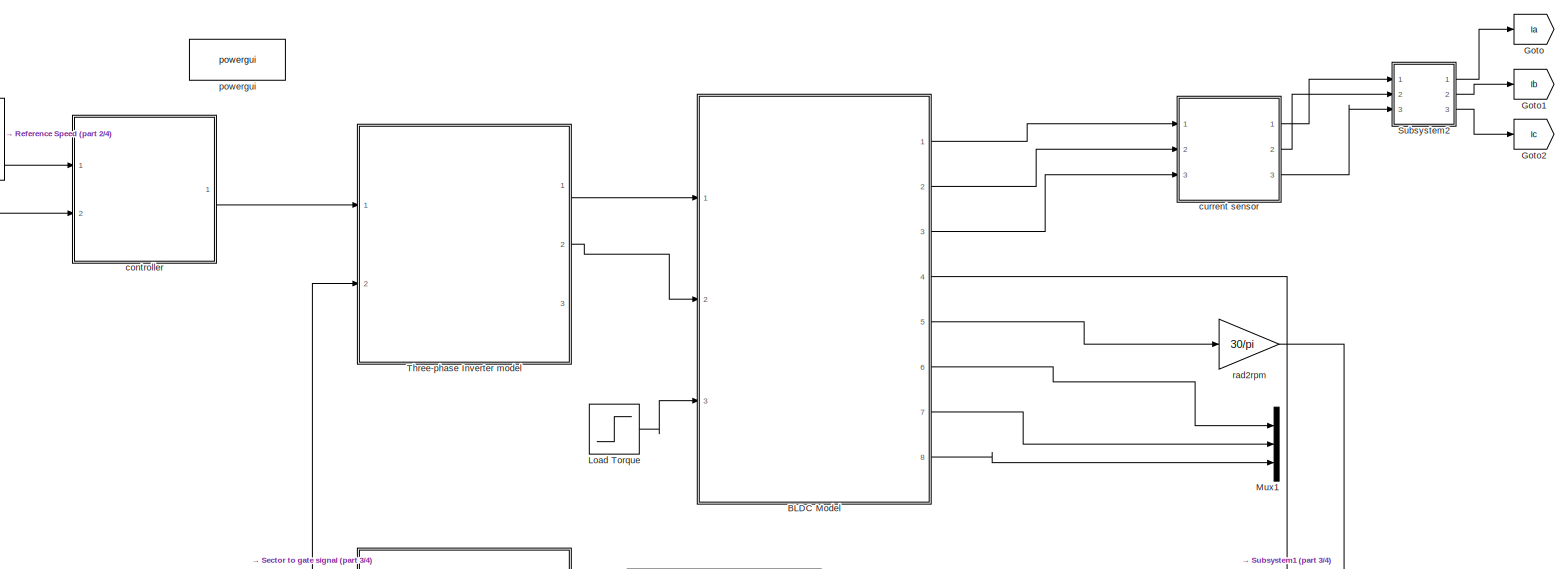
[diagram: root canvas - part 1/4, top center region]
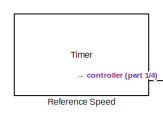
[diagram: root canvas - part 2/4, top left region]
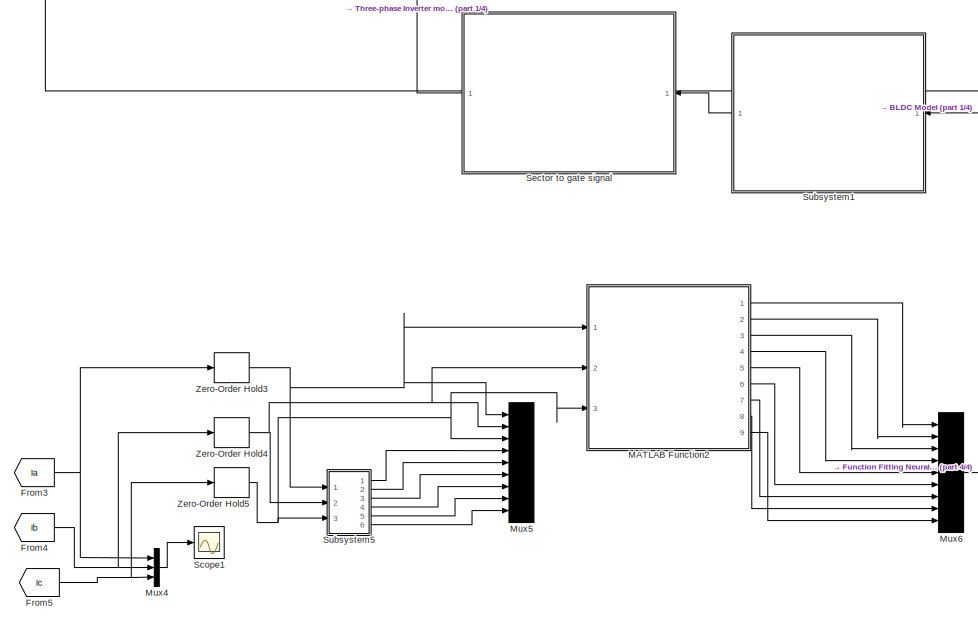
[diagram: root canvas - part 3/4, bottom left region]
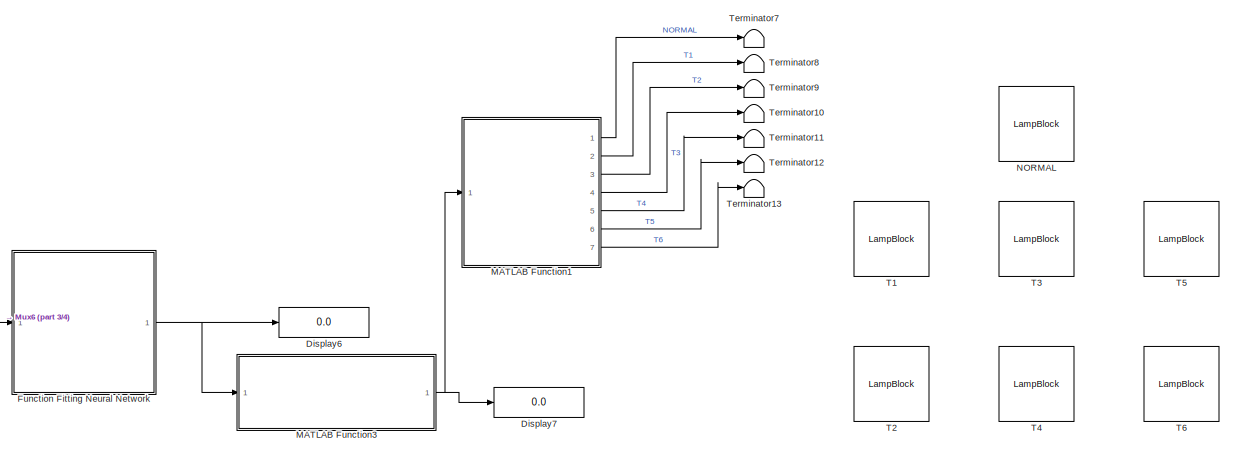
[diagram: root canvas - part 4/4, bottom right region]
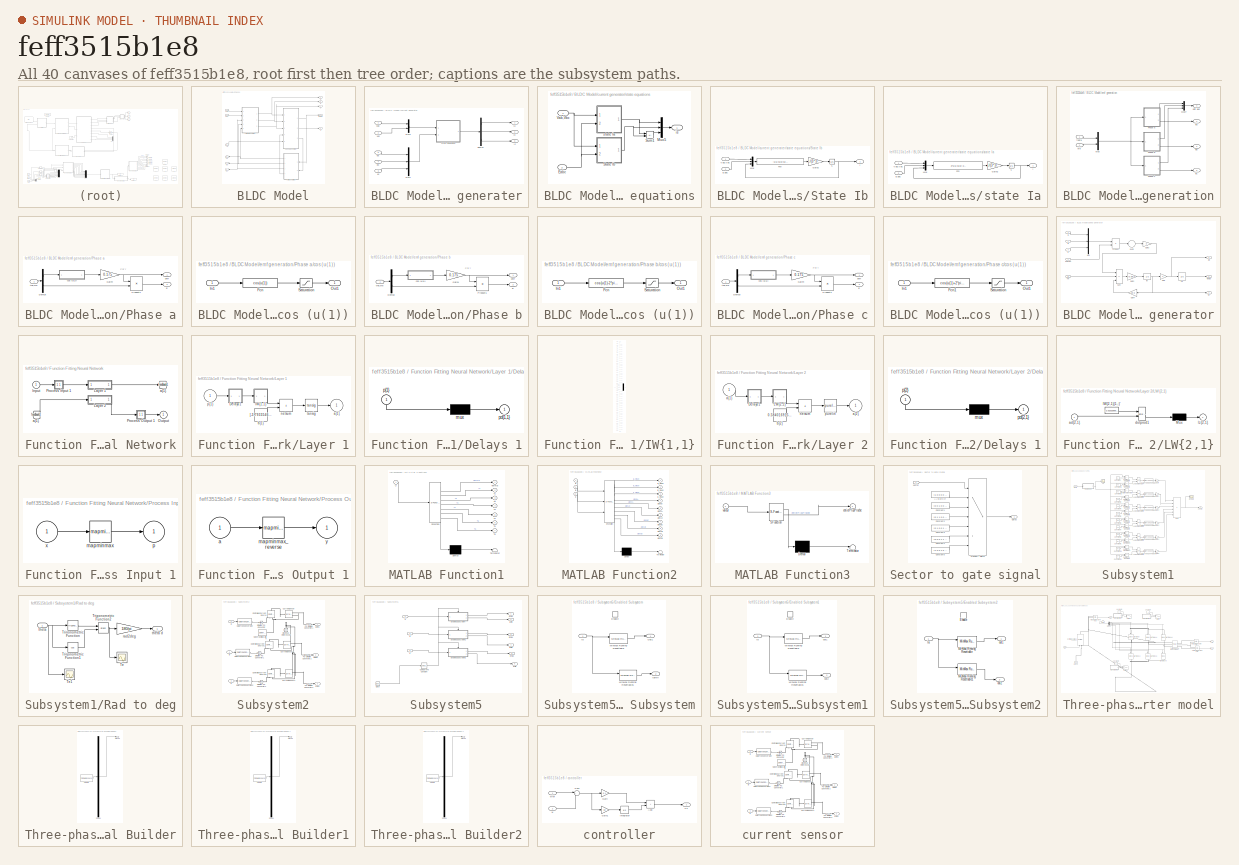
[diagram: thumbnail index - all 40 canvases of the model, root first then tree order]
MODEL slx_feff3515b1e8
KIND model
CONFIG AbsTol = auto
CONFIG EnableMultiTasking = on
CONFIG FixedStep = auto
CONFIG InitFcn = clc;
CONFIG MaxStep = auto
CONFIG MinStep = auto
CONFIG RelTol = 1e-3
CONFIG SampleTimeConstraint = Unconstrained
CONFIG Solver = ode45
CONFIG SolverName = ode45
CONFIG StartTime = 0.0
CONFIG StopFcn = clc;
CONFIG StopTime = 2
BLOCK [SubSystem] BLDC Model
  Ports = [3, 8]
  RequestExecContextInheritance = off
BLOCK [Outport] BLDC Model/Ia
BLOCK [Outport] BLDC Model/Ib
  Port = 2
BLOCK [Outport] BLDC Model/Ic
  Port = 3
BLOCK [Inport] BLDC Model/Tm
  Port = 3
BLOCK [SubSystem] BLDC Model/current generater
  Ports = [5, 3]
  RequestExecContextInheritance = off
BLOCK [Demux] BLDC Model/current generater/Demux
  Outputs = 3
  Ports = [1, 3]
BLOCK [Outport] BLDC Model/current generater/Ia
BLOCK [Outport] BLDC Model/current generater/Ib
  Port = 2
BLOCK [Outport] BLDC Model/current generater/Ic
  Port = 3
BLOCK [Mux] BLDC Model/current generater/Mux1
  DisplayOption = bar
  Inputs = 3
  Ports = [3, 1]
BLOCK [Mux] BLDC Model/current generater/Mux2
  DisplayOption = bar
  Inputs = 2
  Ports = [2, 1]
BLOCK [Inport] BLDC Model/current generater/ea
  Port = 5
BLOCK [Inport] BLDC Model/current generater/eb
  Port = 4
BLOCK [Inport] BLDC Model/current generater/ec
  Port = 3
BLOCK [SubSystem] BLDC Model/current generater/state equations
  Ports = [2, 1]
  RequestExecContextInheritance = off
BLOCK [Inport] BLDC Model/current generater/state equations/Eabc
  Port = 2
BLOCK [Mux] BLDC Model/current generater/state equations/Mux5
  DisplayOption = bar
  Inputs = 3
  Ports = [3, 1]
BLOCK [SubSystem] BLDC Model/current generater/state equations/State Ib
  Ports = [2, 1]
  RequestExecContextInheritance = off
BLOCK [Inport] BLDC Model/current generater/state equations/State Ib/Eabc
  Port = 2
BLOCK [Fcn] BLDC Model/current generater/state equations/State Ib/Fcn
  Expr = -u(1)+u(2)+u(3)-2*u(4)+u(5)-3*2.8750*u(6)
BLOCK [Gain] BLDC Model/current generater/state equations/State Ib/Gain2
  Gain = 1/(3*.0085)
  OutDataTypeStr = Inherit: Same as input
  ParamDataTypeStr = Inherit: Same as input
  SaturateOnIntegerOverflow = on
BLOCK [Mux] BLDC Model/current generater/state equations/State Ib/Mux
  DisplayOption = bar
  Inputs = 3
  Ports = [3, 1]
BLOCK [Inport] BLDC Model/current generater/state equations/State Ib/Vab,Vbc
BLOCK [Outport] BLDC Model/current generater/state equations/State Ib/i
BLOCK [Integrator] BLDC Model/current generater/state equations/State Ib/s 
  Ports = [1, 1]
BLOCK [Sum] BLDC Model/current generater/state equations/Sum1
  IconShape = rectangular
  Inputs = --
  Ports = [2, 1]
  SaturateOnIntegerOverflow = on
BLOCK [Inport] BLDC Model/current generater/state equations/Vab,Vbc
BLOCK [Outport] BLDC Model/current generater/state equations/is
BLOCK [SubSystem] BLDC Model/current generater/state equations/state Ia
  Ports = [2, 1]
  RequestExecContextInheritance = off
BLOCK [Inport] BLDC Model/current generater/state equations/state Ia/Eabc
  Port = 2
BLOCK [Fcn] BLDC Model/current generater/state equations/state Ia/Fcn
  Expr = 2*u(1)+u(2)-2*u(3)+u(4)+u(5)-3*2.8750*u(6)
BLOCK [Gain] BLDC Model/current generater/state equations/state Ia/Gain2
  Gain = 1/(3*.0085)
  OutDataTypeStr = Inherit: Same as input
  ParamDataTypeStr = Inherit: Same as input
  SaturateOnIntegerOverflow = on
BLOCK [Mux] BLDC Model/current generater/state equations/state Ia/Mux
  DisplayOption = bar
  Inputs = 3
  Ports = [3, 1]
BLOCK [Inport] BLDC Model/current generater/state equations/state Ia/Vab,Vbc
BLOCK [Outport] BLDC Model/current generater/state equations/state Ia/i
BLOCK [Integrator] BLDC Model/current generater/state equations/state Ia/s 
  Ports = [1, 1]
BLOCK [Inport] BLDC Model/current generater/vab
BLOCK [Inport] BLDC Model/current generater/vbc
  Port = 2
BLOCK [Outport] BLDC Model/ea
  Port = 6
BLOCK [Outport] BLDC Model/eb
  Port = 7
BLOCK [Outport] BLDC Model/ec
  Port = 8
BLOCK [SubSystem] BLDC Model/emf generation
  Ports = [2, 4]
  RequestExecContextInheritance = off
BLOCK [Mux] BLDC Model/emf generation/Mux
  DisplayOption = bar
  Inputs = 2
  Ports = [2, 1]
BLOCK [Mux] BLDC Model/emf generation/Mux7
  DisplayOption = bar
  Inputs = 3
  Ports = [3, 1]
BLOCK [SubSystem] BLDC Model/emf generation/Phase a
  Ports = [1, 2]
  RequestExecContextInheritance = off
BLOCK [Demux] BLDC Model/emf generation/Phase a/Demux
  DisplayOption = none
  Outputs = 2
  Ports = [1, 2]
BLOCK [Outport] BLDC Model/emf generation/Phase a/E
  Port = 2
BLOCK [Gain] BLDC Model/emf generation/Phase a/Gain4
  Gain = 0.175
  OutDataTypeStr = Inherit: Same as input
  ParamDataTypeStr = Inherit: Same as input
  SaturateOnIntegerOverflow = on
BLOCK [Product] BLDC Model/emf generation/Phase a/Product1
  OutDataTypeStr = Inherit: Same as first input
  Ports = [2, 1]
  SaturateOnIntegerOverflow = on
BLOCK [SubSystem] BLDC Model/emf generation/Phase a/cos (u(1))
  Ports = [1, 1]
  RequestExecContextInheritance = off
BLOCK [Fcn] BLDC Model/emf generation/Phase a/cos (u(1))/Fcn
  Expr = cos(u(1))
BLOCK [Inport] BLDC Model/emf generation/Phase a/cos (u(1))/In1
BLOCK [Outport] BLDC Model/emf generation/Phase a/cos (u(1))/Out1
BLOCK [Saturate] BLDC Model/emf generation/Phase a/cos (u(1))/Saturation
  LowerLimit = -0.8
  UpperLimit = 0.8
BLOCK [Outport] BLDC Model/emf generation/Phase a/phi'r
BLOCK [Inport] BLDC Model/emf generation/Phase a/the,we
BLOCK [SubSystem] BLDC Model/emf generation/Phase b
  Ports = [1, 2]
  RequestExecContextInheritance = off
BLOCK [Demux] BLDC Model/emf generation/Phase b/Demux
  DisplayOption = none
  Outputs = 2
  Ports = [1, 2]
BLOCK [Outport] BLDC Model/emf generation/Phase b/E
  Port = 2
BLOCK [Gain] BLDC Model/emf generation/Phase b/Gain4
  Gain = 0.175
  OutDataTypeStr = Inherit: Same as input
  ParamDataTypeStr = Inherit: Same as input
  SaturateOnIntegerOverflow = on
BLOCK [Product] BLDC Model/emf generation/Phase b/Product1
  OutDataTypeStr = Inherit: Same as first input
  Ports = [2, 1]
  SaturateOnIntegerOverflow = on
BLOCK [SubSystem] BLDC Model/emf generation/Phase b/cos (u(1))
  Ports = [1, 1]
  RequestExecContextInheritance = off
BLOCK [Fcn] BLDC Model/emf generation/Phase b/cos (u(1))/Fcn
  Expr = cos(u(1)-2*pi/3)
BLOCK [Inport] BLDC Model/emf generation/Phase b/cos (u(1))/In1
BLOCK [Outport] BLDC Model/emf generation/Phase b/cos (u(1))/Out1
BLOCK [Saturate] BLDC Model/emf generation/Phase b/cos (u(1))/Saturation
  LowerLimit = -0.8
  UpperLimit = 0.8
BLOCK [Outport] BLDC Model/emf generation/Phase b/phi'r
BLOCK [Inport] BLDC Model/emf generation/Phase b/the,we
BLOCK [SubSystem] BLDC Model/emf generation/Phase c
  Ports = [1, 2]
  RequestExecContextInheritance = off
BLOCK [Demux] BLDC Model/emf generation/Phase c/Demux
  DisplayOption = none
  Outputs = 2
  Ports = [1, 2]
BLOCK [Outport] BLDC Model/emf generation/Phase c/E
  Port = 2
BLOCK [Gain] BLDC Model/emf generation/Phase c/Gain4
  Gain = 0.175
  OutDataTypeStr = Inherit: Same as input
  ParamDataTypeStr = Inherit: Same as input
  SaturateOnIntegerOverflow = on
BLOCK [Product] BLDC Model/emf generation/Phase c/Product1
  OutDataTypeStr = Inherit: Same as first input
  Ports = [2, 1]
  SaturateOnIntegerOverflow = on
BLOCK [SubSystem] BLDC Model/emf generation/Phase c/cos (u(1))
  Ports = [1, 1]
  RequestExecContextInheritance = off
BLOCK [Fcn] BLDC Model/emf generation/Phase c/cos (u(1))/Fcn1
  Expr = cos(u(1)+2*pi/3)
BLOCK [Inport] BLDC Model/emf generation/Phase c/cos (u(1))/In1
BLOCK [Outport] BLDC Model/emf generation/Phase c/cos (u(1))/Out1
BLOCK [Saturate] BLDC Model/emf generation/Phase c/cos (u(1))/Saturation
  LowerLimit = -0.8
  UpperLimit = 0.8
BLOCK [Outport] BLDC Model/emf generation/Phase c/phi'r
BLOCK [Inport] BLDC Model/emf generation/Phase c/the,we
BLOCK [Outport] BLDC Model/emf generation/ea
BLOCK [Outport] BLDC Model/emf generation/eb
  Port = 2
BLOCK [Outport] BLDC Model/emf generation/ec
  Port = 3
BLOCK [Outport] BLDC Model/emf generation/phi'r abc
  Port = 4
BLOCK [Inport] BLDC Model/emf generation/theta
BLOCK [Inport] BLDC Model/emf generation/we
  Port = 2
BLOCK [SubSystem] BLDC Model/speed generator
  Ports = [5, 3]
  RequestExecContextInheritance = off
BLOCK [Gain] BLDC Model/speed generator/Gain
  Gain = 4
  OutDataTypeStr = Inherit: Same as input
  ParamDataTypeStr = Inherit: Same as input
  SaturateOnIntegerOverflow = on
BLOCK [Gain] BLDC Model/speed generator/Gain2
  Gain = 1/0.8e-3
  OutDataTypeStr = Inherit: Same as input
  ParamDataTypeStr = Inherit: Same as input
  SaturateOnIntegerOverflow = on
BLOCK [Gain] BLDC Model/speed generator/Gain3
  Gain = 4
  OutDataTypeStr = Inherit: Same as input
  ParamDataTypeStr = Inherit: Same as input
  SaturateOnIntegerOverflow = on
BLOCK [Gain] BLDC Model/speed generator/Gain4
  Gain = 1e-3
  OutDataTypeStr = Inherit: Same as input
  ParamDataTypeStr = Inherit: Same as input
  SaturateOnIntegerOverflow = on
BLOCK [Inport] BLDC Model/speed generator/Ia
BLOCK [Inport] BLDC Model/speed generator/Ib
  Port = 2
BLOCK [Inport] BLDC Model/speed generator/Ic
  Port = 3
BLOCK [Integrator] BLDC Model/speed generator/Int
  Ports = [1, 1]
BLOCK [Integrator] BLDC Model/speed generator/Int1
  Ports = [1, 1]
BLOCK [Mux] BLDC Model/speed generator/Mux
  DisplayOption = bar
  Inputs = 3
  Ports = [3, 1]
BLOCK [Product] BLDC Model/speed generator/Product
  OutDataTypeStr = Inherit: Same as first input
  Ports = [2, 1]
  SaturateOnIntegerOverflow = on
BLOCK [Sum] BLDC Model/speed generator/Sum
  IconShape = rectangular
  InputSameDT = on
  Inputs = +--
  OutDataTypeStr = Inherit: Same as first input
  Ports = [3, 1]
  SaturateOnIntegerOverflow = on
BLOCK [Sum] BLDC Model/speed generator/Sum2
  Inputs = +
  Ports = [1, 1]
  SaturateOnIntegerOverflow = on
BLOCK [Inport] BLDC Model/speed generator/Tm
  Port = 5
BLOCK [Inport] BLDC Model/speed generator/phi'r abc
  Port = 4
BLOCK [Outport] BLDC Model/speed generator/theta e
BLOCK [Outport] BLDC Model/speed generator/we
  Port = 3
BLOCK [Outport] BLDC Model/speed generator/wr
  Port = 2
BLOCK [Outport] BLDC Model/theta e
  Port = 4
BLOCK [Inport] BLDC Model/vab
BLOCK [Inport] BLDC Model/vbc
  Port = 2
BLOCK [Outport] BLDC Model/w
  Port = 5
BLOCK [Display] Display6
  Decimation = 1
  Ports = [1]
BLOCK [Display] Display7
  Decimation = 1
  Ports = [1]
BLOCK [From] From3
  GotoTag = Ia
BLOCK [From] From4
  GotoTag = Ib
BLOCK [From] From5
  GotoTag = Ic
BLOCK [SubSystem] Function Fitting Neural Network
  Ports = [1, 1]
  RequestExecContextInheritance = off
BLOCK [From] Function Fitting Neural Network/ a{1} 
  GotoTag = feedback1
BLOCK [Inport] Function Fitting Neural Network/Input
  PortDimensions = 9
BLOCK [SubSystem] Function Fitting Neural Network/Layer 1
  Ports = [1, 1]
  RequestExecContextInheritance = off
BLOCK [SubSystem] Function Fitting Neural Network/Layer 1/Delays 1
  Ports = [1, 1]
  RequestExecContextInheritance = off
BLOCK [Mux] Function Fitting Neural Network/Layer 1/Delays 1/mux
  Inputs = 1
  Ports = [1, 1]
BLOCK [Outport] Function Fitting Neural Network/Layer 1/Delays 1/pd{1,1}
BLOCK [Inport] Function Fitting Neural Network/Layer 1/Delays 1/p{1}
  NameLocation = left
  PortDimensions = 9
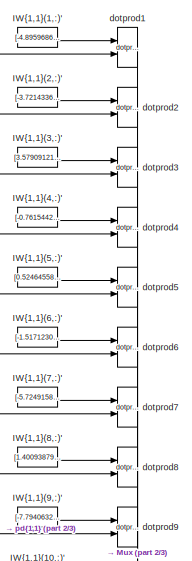
[diagram: Function Fitting Neural Network/Layer 1/IW{1,1} - part 1/3, top center region]
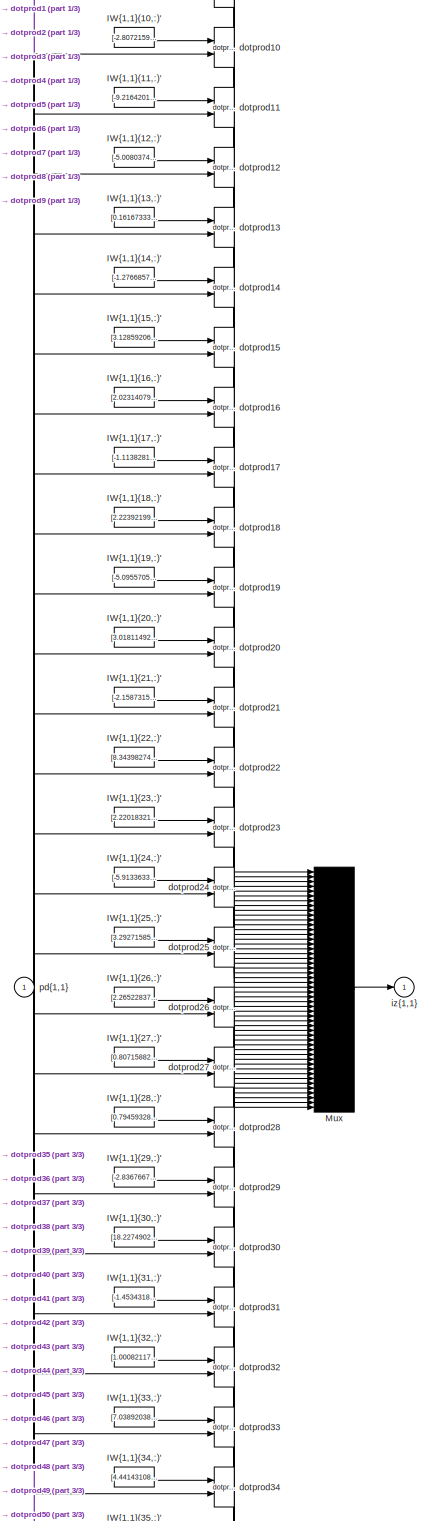
[diagram: Function Fitting Neural Network/Layer 1/IW{1,1} - part 2/3, full width, middle band]
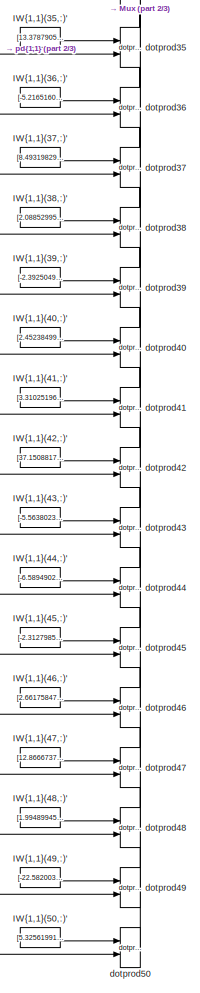
[diagram: Function Fitting Neural Network/Layer 1/IW{1,1} - part 3/3, bottom center region]
BLOCK [SubSystem] Function Fitting Neural Network/Layer 1/IW{1,1}
  Ports = [1, 1]
  RequestExecContextInheritance = off
BLOCK [Constant] Function Fitting Neural Network/Layer 1/IW{1,1}/IW{1,1}(1,:)'
  Value = [-4.895968668193777517672060639597475528717041015625;5.40347313688422303812330937944352626800537109375;2.74044730962565186160873054177500307559967041015625;2.61285690437117157358670738176442682743072509765625;-8.18219538608644114674461889080703258514404296875;5.37405300526213380862827762030065059661865234375;-2.547081241809125540243030627607367932796478271484375;-7.45222912554785299477089210995472...<+71ch>
BLOCK [Constant] Function Fitting Neural Network/Layer 1/IW{1,1}/IW{1,1}(10,:)'
  Value = [-2.807215990265720773066959736752323806285858154296875;0.53318125450332398695962865531328134238719940185546875;1.73233750776441564056540300953201949596405029296875;-6.7636512082147479674176793196238577365875244140625;6.88789031656800165848153483239002525806427001953125;-1.1843020529516923300406006092089228332042694091796875;1.77424013763668231291603660793043673038482666015625;7.997136106231972796...<+90ch>
BLOCK [Constant] Function Fitting Neural Network/Layer 1/IW{1,1}/IW{1,1}(11,:)'
  Value = [-9.216420196795439778725267387926578521728515625;7.1594195626589272052342494134791195392608642578125;3.118246074238363529929074502433650195598602294921875;0.74384522324622814881678323217784054577350616455078125;-2.420490963926231753333695451146923005580902099609375;5.44455711163404476593541403417475521564483642578125;3.547825214125399639897295855917036533355712890625;4.306213188728428953311322402...<+78ch>
BLOCK [Constant] Function Fitting Neural Network/Layer 1/IW{1,1}/IW{1,1}(12,:)'
  Value = [-5.00803744323493038592687298660166561603546142578125;5.9761920590233188477213843725621700286865234375;0.320001378281075166132296772047993727028369903564453125;-2.738915566294051640028328620246611535549163818359375;1.0574131975688112472511193118407391011714935302734375;11.1576349013176656654877660912461578845977783203125;10.25816732987643575825131847523152828216552734375;5.71739885726999741422105...<+81ch>
BLOCK [Constant] Function Fitting Neural Network/Layer 1/IW{1,1}/IW{1,1}(13,:)'
  Value = [0.1616733352080349794821501063779578544199466705322265625;-1.90626528235715131387451037880964577198028564453125;1.1517495220095372854274273777264170348644256591796875;-1.468598245944300106913260606233961880207061767578125;-6.27844796813521188738604905665852129459381103515625;3.5109383197600099180135657661594450473785400390625;-3.687189907329767368793227433343417942523956298828125;-1.6200010345593...<+94ch>
BLOCK [Constant] Function Fitting Neural Network/Layer 1/IW{1,1}/IW{1,1}(14,:)'
  Value = [-1.2766857403284517236130568562657572329044342041015625;-5.73369882955798715329365222714841365814208984375;3.227374843555661954042079742066562175750732421875;-7.7809955575162117469290024018846452236175537109375;2.80775474671538471937992653693072497844696044921875;-4.3767986431355172527446484309621155261993408203125;7.8290605045435910369633347727358341217041015625;6.4679041165319812733969229157082...<+74ch>
BLOCK [Constant] Function Fitting Neural Network/Layer 1/IW{1,1}/IW{1,1}(15,:)'
  Value = [3.1285920616828253315588881378062069416046142578125;2.81705887052771064560374725260771811008453369140625;-3.887956696466934314315722076571546494960784912109375;5.02906629611409972113733601872809231281280517578125;0.6170228014013081629940415950841270387172698974609375;4.6865213003801642344114952720701694488525390625;-8.101108360563227250850104610435664653778076171875;-4.914003657547302950092671380...<+74ch>
BLOCK [Constant] Function Fitting Neural Network/Layer 1/IW{1,1}/IW{1,1}(16,:)'
  Value = [2.023140791325761522756465637939982116222381591796875;3.199313205814582783403920984710566699504852294921875;-3.629430220216549596301547353505156934261322021484375;2.30078335496623598288579159998334944248199462890625;-3.870890427542229783597349523915909230709075927734375;2.513060115012128559186521670198999345302581787109375;-2.583375254625132289021394171868450939655303955078125;-4.1776073926203984...<+91ch>
BLOCK [Constant] Function Fitting Neural Network/Layer 1/IW{1,1}/IW{1,1}(17,:)'
  Value = [-1.113828169301168458105166791938245296478271484375;1.1778404473012773490125937314587645232677459716796875;1.620901404126910971825736851315014064311981201171875;-1.766146228500121484472629163064993917942047119140625;0.646115936343579999601161034661345183849334716796875;1.66630542385350910450370065518654882907867431640625;1.2524116425207412195419465206214226782321929931640625;0.8812841366291574995...<+88ch>
BLOCK [Constant] Function Fitting Neural Network/Layer 1/IW{1,1}/IW{1,1}(18,:)'
  Value = [2.223921991486593530140680741169489920139312744140625;-0.054825426871896072722467607718499493785202503204345703125;0.0022185476097710652050587487593702462618239223957061767578125;-0.5843966860481921710146480108960531651973724365234375;3.799990339256197557915584184229373931884765625;-1.9218355438914278554562997669563628733158111572265625;-3.537447672391386799262136264587752521038055419921875;-1.05...<+105ch>
BLOCK [Constant] Function Fitting Neural Network/Layer 1/IW{1,1}/IW{1,1}(19,:)'
  Value = [-5.0955705305759071421789485611952841281890869140625;6.05178194090348053890693336143158376216888427734375;-1.491669072534929085804833448491990566253662109375;-0.94100410130936185115757552921422757208347320556640625;-1.6970243036780334744406673053163103759288787841796875;-2.266366636401446754689459339715540409088134765625;-3.1732804450517395622455296688713133335113525390625;2.774317765718105288641...<+86ch>
BLOCK [Constant] Function Fitting Neural Network/Layer 1/IW{1,1}/IW{1,1}(2,:)'
  Value = [-3.7214336412183417479582203668542206287384033203125;8.4268142416087190582629773416556417942047119140625;-3.02879148438673073684412884176708757877349853515625;0.2284576077078076250526095236637047491967678070068359375;1.005184022489817419199198411661200225353240966796875;4.73916034710702316345987128443084657192230224609375;2.513388967630310499856705064303241670131683349609375;-2.596527861909523338...<+85ch>
BLOCK [Constant] Function Fitting Neural Network/Layer 1/IW{1,1}/IW{1,1}(20,:)'
  Value = [3.01811492924852498020982238813303411006927490234375;-3.62725956127743831558518650126643478870391845703125;-1.842623857170338386168850774993188679218292236328125;-5.19975075112496920581861559185199439525604248046875;1.966417547133222143429520656354725360870361328125;0.2434354388569480998061322907233261503279209136962890625;8.19305073136916917064809240400791168212890625;0.8761426050846159441221061...<+80ch>
BLOCK [Constant] Function Fitting Neural Network/Layer 1/IW{1,1}/IW{1,1}(21,:)'
  Value = [-2.158731560096526447267706316779367625713348388671875;-0.8746332604844859748283170119975693523883819580078125;3.05676503556049272702921371092088520526885986328125;3.081958001652896239619394691544584929943084716796875;-6.09089804270805057484494682285003364086151123046875;-1.5170091317769973660034565909882076084613800048828125;2.515311414585273297461753827519714832305908203125;-1.51894932821134087...<+87ch>
BLOCK [Constant] Function Fitting Neural Network/Layer 1/IW{1,1}/IW{1,1}(22,:)'
  Value = [8.343982748517642988872466958127915859222412109375;-2.161196645266016513886597749660722911357879638671875;-3.9544004180846030749307828955352306365966796875;-2.43457845164129249582174452370963990688323974609375;-5.205305155843110043178967316634953022003173828125;1.0130992099416860074967416949220933020114898681640625;6.34578855801143770776207020389847457408905029296875;2.209445376191159660095308936...<+82ch>
BLOCK [Constant] Function Fitting Neural Network/Layer 1/IW{1,1}/IW{1,1}(23,:)'
  Value = [2.22018321943891461245357277221046388149261474609375;-1.8800292969605318926795689549180679023265838623046875;-2.243768721796227882947505349875427782535552978515625;-1.057276982754526084562485266360454261302947998046875;-1.2433812829791133225398880313150584697723388671875;-1.383969860461479850499699750798754394054412841796875;3.058730398982790976702972329803742468357086181640625;0.5391395554567918...<+96ch>
BLOCK [Constant] Function Fitting Neural Network/Layer 1/IW{1,1}/IW{1,1}(24,:)'
  Value = [-5.9133633818331219345054705627262592315673828125;7.325130508331572087854510755278170108795166015625;0.67854478523987860061339461026364006102085113525390625;-5.54971457443748494853252850589342415332794189453125;2.338297073162864503359514856128953397274017333984375;-4.82297855274858289220674123498611152172088623046875;4.53075163897600052820280325249768793582916259765625;7.4605392659156422041633049...<+80ch>
BLOCK [Constant] Function Fitting Neural Network/Layer 1/IW{1,1}/IW{1,1}(25,:)'
  Value = [3.2927158535273175488100605434738099575042724609375;-7.466663455404482618860129150561988353729248046875;1.859971234331494915892335484386421740055084228515625;-4.40535563617537917480149189941585063934326171875;-1.4389465848187310559325169379008002579212188720703125;-7.14086549853874519300234169350005686283111572265625;13.11373443627413593048913753591477870941162109375;2.926398481880311042147013722...<+79ch>
BLOCK [Constant] Function Fitting Neural Network/Layer 1/IW{1,1}/IW{1,1}(26,:)'
  Value = [2.26522837065874060868964079418219625949859619140625;4.2525822507105086600631693727336823940277099609375;-4.61264142259110609955996551434509456157684326171875;-6.31738226144889036817176020122133195400238037109375;5.23253833887288255510839007911272346973419189453125;-8.962684825422229550895281136035919189453125;-5.88140626410156119874272917513735592365264892578125;6.1683261761612886431294100475497...<+70ch>
BLOCK [Constant] Function Fitting Neural Network/Layer 1/IW{1,1}/IW{1,1}(27,:)'
  Value = [0.80715882897217128277844722106237895786762237548828125;-1.5342936386238827939365592101239599287509918212890625;-0.42012466949483495692874157612095586955547332763671875;-8.11645473537303274724763468839228153228759765625;-1.1314757465724880614033054371247999370098114013671875;14.781667595466473130727536045014858245849609375;1.8109771676627250958091508437064476311206817626953125;3.90859598692133225...<+87ch>
BLOCK [Constant] Function Fitting Neural Network/Layer 1/IW{1,1}/IW{1,1}(28,:)'
  Value = [0.79459328138242157901771633987664245069026947021484375;-1.8079929837847250606586158028221689164638519287109375;1.69049420812355766230439257924444973468780517578125;-0.73313934220313348166797595695243217051029205322265625;-1.5224778868556130273503868011175654828548431396484375;0.4887267103351027319746435750857926905155181884765625;3.311316422988955121553544813650660216808319091796875;0.5754150431...<+95ch>
BLOCK [Constant] Function Fitting Neural Network/Layer 1/IW{1,1}/IW{1,1}(29,:)'
  Value = [-2.83676671770210919731880494509823620319366455078125;3.78002105566060198071909326245076954364776611328125;-2.323486567515789857907293480820953845977783203125;-0.95512967653330071993167393884505145251750946044921875;-0.60568244848216823417175191934802569448947906494140625;2.210703505491417697470524217351339757442474365234375;-2.039411367259091445447438672999851405620574951171875;-0.73412589888445...<+96ch>
BLOCK [Constant] Function Fitting Neural Network/Layer 1/IW{1,1}/IW{1,1}(3,:)'
  Value = [3.579091214525738084972772412584163248538970947265625;-2.431777730337249199266125287977047264575958251953125;-1.4837016201098738310548696972546167671680450439453125;3.025023954173181817139948179828934371471405029296875;-5.09547170650127778657179078436456620693206787109375;-4.7348999293881117722548879100941121578216552734375;-0.428598247009314980981997678100015036761760711669921875;-3.530088208951...<+92ch>
BLOCK [Constant] Function Fitting Neural Network/Layer 1/IW{1,1}/IW{1,1}(30,:)'
  Value = [18.2274902291847951119052595458924770355224609375;0.10029042444976567216574636631776229478418827056884765625;-15.2216980933245960017075049108825623989105224609375;-51.1700178399161842435205471701920032501220703125;-56.02455973781388109955514664761722087860107421875;47.243740956707284794902079738676548004150390625;10.6716383101642922071050634258426725864410400390625;27.8394879726186879054239398101...<+74ch>
BLOCK [Constant] Function Fitting Neural Network/Layer 1/IW{1,1}/IW{1,1}(31,:)'
  Value = [-1.4534318752841068889125608620815910398960113525390625;6.1247562160562427635568383266218006610870361328125;-2.8918337539965239813000152935273945331573486328125;0.9028102978327281480375177125097252428531646728515625;-4.3042053734154190891558755538426339626312255859375;-1.845935973018257403310826703091152012348175048828125;2.573811245121011115344344943878240883350372314453125;-3.919961580962290526...<+85ch>
BLOCK [Constant] Function Fitting Neural Network/Layer 1/IW{1,1}/IW{1,1}(32,:)'
  Value = [1.000821177556808994069115215097554028034210205078125;-1.1601853380740809740245822467841207981109619140625;-1.2470947311945967950208569163805805146694183349609375;-1.288548983066672537489694150281138718128204345703125;1.099069146087539028400215102010406553745269775390625;-2.518438507999196218634097022004425525665283203125;7.2023214000541369017582837841473519802093505859375;5.202359826724589630941...<+86ch>
BLOCK [Constant] Function Fitting Neural Network/Layer 1/IW{1,1}/IW{1,1}(33,:)'
  Value = [7.03892038863087776690008467994630336761474609375;-11.064903976837282328915534890256822109222412109375;0.69971359527199628036697731658932752907276153564453125;-6.25767087593949344892507724580354988574981689453125;1.2295683633822871438923129971954040229320526123046875;-22.917965838783505461151435156352818012237548828125;-0.1913542269049568200767197367895278148353099822998046875;-17.306703727692728...<+86ch>
BLOCK [Constant] Function Fitting Neural Network/Layer 1/IW{1,1}/IW{1,1}(34,:)'
  Value = [4.44143108315375911843148060142993927001953125;1.5265309562414410837760669892304576933383941650390625;-4.78652973989852625891217030584812164306640625;2.7260670293901849703388506895862519741058349609375;-0.1258984760152474235983532935279072262346744537353515625;1.6425137964559730630043077326263301074504852294921875;-0.026399067741740452064380662022813339717686176300048828125;-0.2689928137934987639...<+89ch>
BLOCK [Constant] Function Fitting Neural Network/Layer 1/IW{1,1}/IW{1,1}(35,:)'
  Value = [13.378790595756438364105633809231221675872802734375;-1.5596846444388201557984530154499225318431854248046875;-8.8549881877569429633467734674923121929168701171875;0.278641989673728718290846018135198391973972320556640625;-2.218723650480382669769596759579144418239593505859375;2.3815327462113042855662570218555629253387451171875;4.3910483195623868368784314952790737152099609375;-1.8562893492929846139816...<+82ch>
BLOCK [Constant] Function Fitting Neural Network/Layer 1/IW{1,1}/IW{1,1}(36,:)'
  Value = [-5.2165160056228447871262687840498983860015869140625;3.4932935304848200530614121817052364349365234375;1.349201861956220938054684665985405445098876953125;2.677603341351294741201627402915619313716888427734375;-5.7714083461349314774224694701842963695526123046875;11.9309452097577963769481357303448021411895751953125;1.6614186756337654404802606222801841795444488525390625;-2.0463799740044308350661594886...<+71ch>
BLOCK [Constant] Function Fitting Neural Network/Layer 1/IW{1,1}/IW{1,1}(37,:)'
  Value = [8.4931982933498186838505716877989470958709716796875;-2.991790861709237692167562272516079246997833251953125;-6.7006468660041331730781166697852313518524169921875;5.66684323427097513814487683703191578388214111328125;-7.57120136002534582786438477342016994953155517578125;-2.29115809411889781443960600881837308406829833984375;-9.716557655800205139939862419851124286651611328125;-6.75121978701695812929983...<+81ch>
BLOCK [Constant] Function Fitting Neural Network/Layer 1/IW{1,1}/IW{1,1}(38,:)'
  Value = [2.088529953586264920062376404530368745326995849609375;-2.450704266549707188715956363012082874774932861328125;-2.33829321932056632959984199260361492633819580078125;6.7288336579490195532571306102909147739410400390625;-5.49061267695196786320366300060413777828216552734375;1.2500294480874185598651138207060284912586212158203125;0.08831491119464775219061181132929050363600254058837890625;-6.3533526116778...<+96ch>
BLOCK [Constant] Function Fitting Neural Network/Layer 1/IW{1,1}/IW{1,1}(39,:)'
  Value = [-2.392504918032547944761745384312234818935394287109375;31.7159889925565181556521565653383731842041015625;-19.035880551040893493563999072648584842681884765625;-2.811650086828039629693876122473739087581634521484375;35.8492056691828793191234581172466278076171875;17.110530804295731144293313263915479183197021484375;23.084408404957553528902280959300696849822998046875;15.09331884733849094004654034506529...<+71ch>
BLOCK [Constant] Function Fitting Neural Network/Layer 1/IW{1,1}/IW{1,1}(4,:)'
  Value = [-0.76154429722584449091726810365798883140087127685546875;-3.865140946642005470579306347644887864589691162109375;2.810067424866792951121396981761790812015533447265625;-2.0679206122518554167299953405745327472686767578125;-0.30951541105722479851891648650052957236766815185546875;3.366032002972835446286126170889474451541900634765625;-0.68917292208956049126555853945319540798664093017578125;-3.914217377...<+97ch>
BLOCK [Constant] Function Fitting Neural Network/Layer 1/IW{1,1}/IW{1,1}(40,:)'
  Value = [2.452384991521587398466408558306284248828887939453125;3.096811057518499499252584428177215158939361572265625;-5.19281998518984710955237460439093410968780517578125;5.6152203407946021940233549685217440128326416015625;-14.72604220900434057739403215236961841583251953125;-4.85256894723468956698297915863804519176483154296875;-3.191000716728321418003133658203296363353729248046875;-4.494920189864551218761...<+80ch>
BLOCK [Constant] Function Fitting Neural Network/Layer 1/IW{1,1}/IW{1,1}(41,:)'
  Value = [3.3102519664394520759742590598762035369873046875;0.473351329623000083302031271159648895263671875;-3.25904259369478932484298638883046805858612060546875;11.7672363405767601562956770067103207111358642578125;6.01052086780126071374752427800558507442474365234375;-12.3251952499961543452400292153470218181610107421875;-1.66113206425894599504999860073439776897430419921875;-6.5878594150286664543614278954919...<+74ch>
BLOCK [Constant] Function Fitting Neural Network/Layer 1/IW{1,1}/IW{1,1}(42,:)'
  Value = [37.150881776758296837215311825275421142578125;-55.18492268530483357835692004300653934478759765625;4.022718820313276211209085886366665363311767578125;-58.673706816738075531247886829078197479248046875;-68.8844313276788255961946561001241207122802734375;58.4727121088444476981749176047742366790771484375;12.7442855762528353125162539072334766387939453125;33.1212786788305635354845435358583927154541015625...<+54ch>
BLOCK [Constant] Function Fitting Neural Network/Layer 1/IW{1,1}/IW{1,1}(43,:)'
  Value = [-5.56380238518266967417957857833243906497955322265625;0.03352896070247768367522667176672257483005523681640625;3.00512413127854838279517935006879270076751708984375;2.96301586369306857449146264116279780864715576171875;-2.6412629354603467390916193835437297821044921875;7.44659200164256684928432150627486407756805419921875;1.43785634942696560756303369998931884765625;-4.444858141928966333011885581072419...<+74ch>
BLOCK [Constant] Function Fitting Neural Network/Layer 1/IW{1,1}/IW{1,1}(44,:)'
  Value = [-6.58949020740030011467069925856776535511016845703125;5.61721173715779809043624482001177966594696044921875;1.413785061834719414264327497221529483795166015625;-2.94818424594639427738229642272926867008209228515625;-6.4549500242106727654345377231948077678680419921875;5.6393397561049045663139622774906456470489501953125;-7.2612943435046712892244613613002002239227294921875;-1.77489863712766160475098331...<+75ch>
BLOCK [Constant] Function Fitting Neural Network/Layer 1/IW{1,1}/IW{1,1}(45,:)'
  Value = [-2.312798540584005468900841151480562984943389892578125;6.3857168294009465370208999956957995891571044921875;-3.05092518908506082908616008353419601917266845703125;-1.340006785269062472565337884589098393917083740234375;-6.1855460161201865076918693375773727893829345703125;4.442638627253320038335004937835037708282470703125;1.1079534415150236181801801649271510541439056396484375;-2.801094404939681759003...<+86ch>
BLOCK [Constant] Function Fitting Neural Network/Layer 1/IW{1,1}/IW{1,1}(46,:)'
  Value = [2.661758479883007399990901831188239157199859619140625;-5.46291685324124731693018475198186933994293212890625;-0.63711373570406693023215893845190294086933135986328125;0.3741446884612227297139952497673220932483673095703125;-2.082093870394800205758656375110149383544921875;0.57463883851576558203788636092212982475757598876953125;-2.998734291191599954373714354005642235279083251953125;0.28667201028371819...<+92ch>
BLOCK [Constant] Function Fitting Neural Network/Layer 1/IW{1,1}/IW{1,1}(47,:)'
  Value = [12.8666737034711591292079901904799044132232666015625;-11.8418045094891635216072245384566485881805419921875;-4.85049176848345720003408132470212876796722412109375;-0.1521501480686227036898117148666642606258392333984375;5.6042873526386589588810238637961447238922119140625;-11.1783085487774389576998146367259323596954345703125;-6.46226256128151188562469542375765740871429443359375;5.52248228334268009831...<+85ch>
BLOCK [Constant] Function Fitting Neural Network/Layer 1/IW{1,1}/IW{1,1}(48,:)'
  Value = [1.9948994584804158325397338558104820549488067626953125;0.2181573967888530141134850737216765992343425750732421875;-1.6633958623808016152878508364665322005748748779296875;3.439418352105118259487426257692277431488037109375;-3.813577628945288733319785023923031985759735107421875;8.257900847886364914529622183181345462799072265625;-1.0679742142029955420667874932405538856983184814453125;-5.24209172469266...<+85ch>
BLOCK [Constant] Function Fitting Neural Network/Layer 1/IW{1,1}/IW{1,1}(49,:)'
  Value = [-22.5820036525644951552749262191355228424072265625;32.84152661184146637651792843826115131378173828125;-2.79452432569914943627509273937903344631195068359375;10.5897130394403671260761257144622504711151123046875;0.9574022316746988447988542247912846505641937255859375;-33.287025005266031030259910039603710174560546875;-7.89751812289360177743446911335922777652740478515625;-14.640554800282689740242858533...<+74ch>
BLOCK [Constant] Function Fitting Neural Network/Layer 1/IW{1,1}/IW{1,1}(5,:)'
  Value = [0.52464558246217218862028630610438995063304901123046875;1.1840936765667142704927528029656969010829925537109375;-0.5870172690367712053927107263007201254367828369140625;-0.120523263213762665824191344654536806046962738037109375;0.70490827099396791144414464724832214415073394775390625;0.07065238029798716345997178223115042783319950103759765625;-1.399343965903664610550549696199595928192138671875;-0.4415...<+107ch>
BLOCK [Constant] Function Fitting Neural Network/Layer 1/IW{1,1}/IW{1,1}(50,:)'
  Value = [5.3256199142182598649242208921350538730621337890625;-11.8530738122641086107478258782066404819488525390625;3.527143955119672380504880493390373885631561279296875;0.77020541798430108837436591784353367984294891357421875;1.790117059455414771917958205449394881725311279296875;6.7769688724986938410665970877744257450103759765625;-0.278656253693321975806185264445957727730274200439453125;1.92191248541533510...<+93ch>
BLOCK [Constant] Function Fitting Neural Network/Layer 1/IW{1,1}/IW{1,1}(6,:)'
  Value = [-1.5171230430298139335576479425071738660335540771484375;1.86275900722956233579452600679360330104827880859375;-1.0896520521000869763383889221586287021636962890625;-0.5697864682005608916171013333951123058795928955078125;-7.30279832624464564361232987721450626850128173828125;5.64240237810450206978885034914128482341766357421875;-0.311915207578944642108353946241550147533416748046875;-3.7673550197372316...<+90ch>
BLOCK [Constant] Function Fitting Neural Network/Layer 1/IW{1,1}/IW{1,1}(7,:)'
  Value = [-5.72491581753663769660533944261260330677032470703125;-19.890707229573113323795041651464998722076416015625;16.62991106175423539070834522135555744171142578125;5.59070787842219285579403731389902532100677490234375;-0.0184041350603553095777176196179425460286438465118408203125;-8.080686997869843679609402897767722606658935546875;-2.218592037529357963165921319159679114818572998046875;-5.9450147181816452...<+88ch>
BLOCK [Constant] Function Fitting Neural Network/Layer 1/IW{1,1}/IW{1,1}(8,:)'
  Value = [1.4009387932551236044531606239615939557552337646484375;-5.84707714002727385604885057546198368072509765625;2.169317700000679582927887167898006737232208251953125;4.71779674103439194965403657988645136356353759765625;-2.0911184550530510506405335036106407642364501953125;-0.1393208332417232020450370555408881045877933502197265625;-1.398000557227633944279432398616336286067962646484375;-3.2341877031195309...<+84ch>
BLOCK [Constant] Function Fitting Neural Network/Layer 1/IW{1,1}/IW{1,1}(9,:)'
  Value = [-7.79406328629590117174075203365646302700042724609375;8.9400645208249134299194338382221758365631103515625;0.312889245477898481073708580879610963165760040283203125;3.09333091091537593086968627176247537136077880859375;-7.9134134786868113309310501790605485439300537109375;2.162430323652487995644833063124679028987884521484375;-1.7890812976913268439460580339073203504085540771484375;-2.31234246556517630...<+85ch>
BLOCK [Mux] Function Fitting Neural Network/Layer 1/IW{1,1}/Mux
  Inputs = 50
  Ports = [50, 1]
BLOCK [Reference] Function Fitting Neural Network/Layer 1/IW{1,1}/dotprod1  REF=neural/Weight Functions/dotprod
  Ports = [2, 1]
  SourceBlock = neural/Weight Functions/dotprod
  SourceProductBaseCode = NN
  SourceType = DOTPROD
BLOCK [Reference] Function Fitting Neural Network/Layer 1/IW{1,1}/dotprod10  REF=neural/Weight Functions/dotprod
  Ports = [2, 1]
  SourceBlock = neural/Weight Functions/dotprod
  SourceProductBaseCode = NN
  SourceType = DOTPROD
BLOCK [Reference] Function Fitting Neural Network/Layer 1/IW{1,1}/dotprod11  REF=neural/Weight Functions/dotprod
  Ports = [2, 1]
  SourceBlock = neural/Weight Functions/dotprod
  SourceProductBaseCode = NN
  SourceType = DOTPROD
BLOCK [Reference] Function Fitting Neural Network/Layer 1/IW{1,1}/dotprod12  REF=neural/Weight Functions/dotprod
  Ports = [2, 1]
  SourceBlock = neural/Weight Functions/dotprod
  SourceProductBaseCode = NN
  SourceType = DOTPROD
BLOCK [Reference] Function Fitting Neural Network/Layer 1/IW{1,1}/dotprod13  REF=neural/Weight Functions/dotprod
  Ports = [2, 1]
  SourceBlock = neural/Weight Functions/dotprod
  SourceProductBaseCode = NN
  SourceType = DOTPROD
BLOCK [Reference] Function Fitting Neural Network/Layer 1/IW{1,1}/dotprod14  REF=neural/Weight Functions/dotprod
  Ports = [2, 1]
  SourceBlock = neural/Weight Functions/dotprod
  SourceProductBaseCode = NN
  SourceType = DOTPROD
BLOCK [Reference] Function Fitting Neural Network/Layer 1/IW{1,1}/dotprod15  REF=neural/Weight Functions/dotprod
  Ports = [2, 1]
  SourceBlock = neural/Weight Functions/dotprod
  SourceProductBaseCode = NN
  SourceType = DOTPROD
BLOCK [Reference] Function Fitting Neural Network/Layer 1/IW{1,1}/dotprod16  REF=neural/Weight Functions/dotprod
  Ports = [2, 1]
  SourceBlock = neural/Weight Functions/dotprod
  SourceProductBaseCode = NN
  SourceType = DOTPROD
BLOCK [Reference] Function Fitting Neural Network/Layer 1/IW{1,1}/dotprod17  REF=neural/Weight Functions/dotprod
  Ports = [2, 1]
  SourceBlock = neural/Weight Functions/dotprod
  SourceProductBaseCode = NN
  SourceType = DOTPROD
BLOCK [Reference] Function Fitting Neural Network/Layer 1/IW{1,1}/dotprod18  REF=neural/Weight Functions/dotprod
  Ports = [2, 1]
  SourceBlock = neural/Weight Functions/dotprod
  SourceProductBaseCode = NN
  SourceType = DOTPROD
BLOCK [Reference] Function Fitting Neural Network/Layer 1/IW{1,1}/dotprod19  REF=neural/Weight Functions/dotprod
  Ports = [2, 1]
  SourceBlock = neural/Weight Functions/dotprod
  SourceProductBaseCode = NN
  SourceType = DOTPROD
BLOCK [Reference] Function Fitting Neural Network/Layer 1/IW{1,1}/dotprod2  REF=neural/Weight Functions/dotprod
  Ports = [2, 1]
  SourceBlock = neural/Weight Functions/dotprod
  SourceProductBaseCode = NN
  SourceType = DOTPROD
BLOCK [Reference] Function Fitting Neural Network/Layer 1/IW{1,1}/dotprod20  REF=neural/Weight Functions/dotprod
  Ports = [2, 1]
  SourceBlock = neural/Weight Functions/dotprod
  SourceProductBaseCode = NN
  SourceType = DOTPROD
BLOCK [Reference] Function Fitting Neural Network/Layer 1/IW{1,1}/dotprod21  REF=neural/Weight Functions/dotprod
  Ports = [2, 1]
  SourceBlock = neural/Weight Functions/dotprod
  SourceProductBaseCode = NN
  SourceType = DOTPROD
BLOCK [Reference] Function Fitting Neural Network/Layer 1/IW{1,1}/dotprod22  REF=neural/Weight Functions/dotprod
  Ports = [2, 1]
  SourceBlock = neural/Weight Functions/dotprod
  SourceProductBaseCode = NN
  SourceType = DOTPROD
BLOCK [Reference] Function Fitting Neural Network/Layer 1/IW{1,1}/dotprod23  REF=neural/Weight Functions/dotprod
  Ports = [2, 1]
  SourceBlock = neural/Weight Functions/dotprod
  SourceProductBaseCode = NN
  SourceType = DOTPROD
BLOCK [Reference] Function Fitting Neural Network/Layer 1/IW{1,1}/dotprod24  REF=neural/Weight Functions/dotprod
  Ports = [2, 1]
  SourceBlock = neural/Weight Functions/dotprod
  SourceProductBaseCode = NN
  SourceType = DOTPROD
BLOCK [Reference] Function Fitting Neural Network/Layer 1/IW{1,1}/dotprod25  REF=neural/Weight Functions/dotprod
  Ports = [2, 1]
  SourceBlock = neural/Weight Functions/dotprod
  SourceProductBaseCode = NN
  SourceType = DOTPROD
BLOCK [Reference] Function Fitting Neural Network/Layer 1/IW{1,1}/dotprod26  REF=neural/Weight Functions/dotprod
  Ports = [2, 1]
  SourceBlock = neural/Weight Functions/dotprod
  SourceProductBaseCode = NN
  SourceType = DOTPROD
BLOCK [Reference] Function Fitting Neural Network/Layer 1/IW{1,1}/dotprod27  REF=neural/Weight Functions/dotprod
  Ports = [2, 1]
  SourceBlock = neural/Weight Functions/dotprod
  SourceProductBaseCode = NN
  SourceType = DOTPROD
BLOCK [Reference] Function Fitting Neural Network/Layer 1/IW{1,1}/dotprod28  REF=neural/Weight Functions/dotprod
  Ports = [2, 1]
  SourceBlock = neural/Weight Functions/dotprod
  SourceProductBaseCode = NN
  SourceType = DOTPROD
BLOCK [Reference] Function Fitting Neural Network/Layer 1/IW{1,1}/dotprod29  REF=neural/Weight Functions/dotprod
  Ports = [2, 1]
  SourceBlock = neural/Weight Functions/dotprod
  SourceProductBaseCode = NN
  SourceType = DOTPROD
BLOCK [Reference] Function Fitting Neural Network/Layer 1/IW{1,1}/dotprod3  REF=neural/Weight Functions/dotprod
  Ports = [2, 1]
  SourceBlock = neural/Weight Functions/dotprod
  SourceProductBaseCode = NN
  SourceType = DOTPROD
BLOCK [Reference] Function Fitting Neural Network/Layer 1/IW{1,1}/dotprod30  REF=neural/Weight Functions/dotprod
  Ports = [2, 1]
  SourceBlock = neural/Weight Functions/dotprod
  SourceProductBaseCode = NN
  SourceType = DOTPROD
BLOCK [Reference] Function Fitting Neural Network/Layer 1/IW{1,1}/dotprod31  REF=neural/Weight Functions/dotprod
  Ports = [2, 1]
  SourceBlock = neural/Weight Functions/dotprod
  SourceProductBaseCode = NN
  SourceType = DOTPROD
BLOCK [Reference] Function Fitting Neural Network/Layer 1/IW{1,1}/dotprod32  REF=neural/Weight Functions/dotprod
  Ports = [2, 1]
  SourceBlock = neural/Weight Functions/dotprod
  SourceProductBaseCode = NN
  SourceType = DOTPROD
BLOCK [Reference] Function Fitting Neural Network/Layer 1/IW{1,1}/dotprod33  REF=neural/Weight Functions/dotprod
  Ports = [2, 1]
  SourceBlock = neural/Weight Functions/dotprod
  SourceProductBaseCode = NN
  SourceType = DOTPROD
BLOCK [Reference] Function Fitting Neural Network/Layer 1/IW{1,1}/dotprod34  REF=neural/Weight Functions/dotprod
  Ports = [2, 1]
  SourceBlock = neural/Weight Functions/dotprod
  SourceProductBaseCode = NN
  SourceType = DOTPROD
BLOCK [Reference] Function Fitting Neural Network/Layer 1/IW{1,1}/dotprod35  REF=neural/Weight Functions/dotprod
  Ports = [2, 1]
  SourceBlock = neural/Weight Functions/dotprod
  SourceProductBaseCode = NN
  SourceType = DOTPROD
BLOCK [Reference] Function Fitting Neural Network/Layer 1/IW{1,1}/dotprod36  REF=neural/Weight Functions/dotprod
  Ports = [2, 1]
  SourceBlock = neural/Weight Functions/dotprod
  SourceProductBaseCode = NN
  SourceType = DOTPROD
BLOCK [Reference] Function Fitting Neural Network/Layer 1/IW{1,1}/dotprod37  REF=neural/Weight Functions/dotprod
  Ports = [2, 1]
  SourceBlock = neural/Weight Functions/dotprod
  SourceProductBaseCode = NN
  SourceType = DOTPROD
BLOCK [Reference] Function Fitting Neural Network/Layer 1/IW{1,1}/dotprod38  REF=neural/Weight Functions/dotprod
  Ports = [2, 1]
  SourceBlock = neural/Weight Functions/dotprod
  SourceProductBaseCode = NN
  SourceType = DOTPROD
BLOCK [Reference] Function Fitting Neural Network/Layer 1/IW{1,1}/dotprod39  REF=neural/Weight Functions/dotprod
  Ports = [2, 1]
  SourceBlock = neural/Weight Functions/dotprod
  SourceProductBaseCode = NN
  SourceType = DOTPROD
BLOCK [Reference] Function Fitting Neural Network/Layer 1/IW{1,1}/dotprod4  REF=neural/Weight Functions/dotprod
  Ports = [2, 1]
  SourceBlock = neural/Weight Functions/dotprod
  SourceProductBaseCode = NN
  SourceType = DOTPROD
BLOCK [Reference] Function Fitting Neural Network/Layer 1/IW{1,1}/dotprod40  REF=neural/Weight Functions/dotprod
  Ports = [2, 1]
  SourceBlock = neural/Weight Functions/dotprod
  SourceProductBaseCode = NN
  SourceType = DOTPROD
BLOCK [Reference] Function Fitting Neural Network/Layer 1/IW{1,1}/dotprod41  REF=neural/Weight Functions/dotprod
  Ports = [2, 1]
  SourceBlock = neural/Weight Functions/dotprod
  SourceProductBaseCode = NN
  SourceType = DOTPROD
BLOCK [Reference] Function Fitting Neural Network/Layer 1/IW{1,1}/dotprod42  REF=neural/Weight Functions/dotprod
  Ports = [2, 1]
  SourceBlock = neural/Weight Functions/dotprod
  SourceProductBaseCode = NN
  SourceType = DOTPROD
BLOCK [Reference] Function Fitting Neural Network/Layer 1/IW{1,1}/dotprod43  REF=neural/Weight Functions/dotprod
  Ports = [2, 1]
  SourceBlock = neural/Weight Functions/dotprod
  SourceProductBaseCode = NN
  SourceType = DOTPROD
BLOCK [Reference] Function Fitting Neural Network/Layer 1/IW{1,1}/dotprod44  REF=neural/Weight Functions/dotprod
  Ports = [2, 1]
  SourceBlock = neural/Weight Functions/dotprod
  SourceProductBaseCode = NN
  SourceType = DOTPROD
BLOCK [Reference] Function Fitting Neural Network/Layer 1/IW{1,1}/dotprod45  REF=neural/Weight Functions/dotprod
  Ports = [2, 1]
  SourceBlock = neural/Weight Functions/dotprod
  SourceProductBaseCode = NN
  SourceType = DOTPROD
BLOCK [Reference] Function Fitting Neural Network/Layer 1/IW{1,1}/dotprod46  REF=neural/Weight Functions/dotprod
  Ports = [2, 1]
  SourceBlock = neural/Weight Functions/dotprod
  SourceProductBaseCode = NN
  SourceType = DOTPROD
BLOCK [Reference] Function Fitting Neural Network/Layer 1/IW{1,1}/dotprod47  REF=neural/Weight Functions/dotprod
  Ports = [2, 1]
  SourceBlock = neural/Weight Functions/dotprod
  SourceProductBaseCode = NN
  SourceType = DOTPROD
BLOCK [Reference] Function Fitting Neural Network/Layer 1/IW{1,1}/dotprod48  REF=neural/Weight Functions/dotprod
  Ports = [2, 1]
  SourceBlock = neural/Weight Functions/dotprod
  SourceProductBaseCode = NN
  SourceType = DOTPROD
BLOCK [Reference] Function Fitting Neural Network/Layer 1/IW{1,1}/dotprod49  REF=neural/Weight Functions/dotprod
  Ports = [2, 1]
  SourceBlock = neural/Weight Functions/dotprod
  SourceProductBaseCode = NN
  SourceType = DOTPROD
BLOCK [Reference] Function Fitting Neural Network/Layer 1/IW{1,1}/dotprod5  REF=neural/Weight Functions/dotprod
  Ports = [2, 1]
  SourceBlock = neural/Weight Functions/dotprod
  SourceProductBaseCode = NN
  SourceType = DOTPROD
BLOCK [Reference] Function Fitting Neural Network/Layer 1/IW{1,1}/dotprod50  REF=neural/Weight Functions/dotprod
  Ports = [2, 1]
  SourceBlock = neural/Weight Functions/dotprod
  SourceProductBaseCode = NN
  SourceType = DOTPROD
BLOCK [Reference] Function Fitting Neural Network/Layer 1/IW{1,1}/dotprod6  REF=neural/Weight Functions/dotprod
  Ports = [2, 1]
  SourceBlock = neural/Weight Functions/dotprod
  SourceProductBaseCode = NN
  SourceType = DOTPROD
BLOCK [Reference] Function Fitting Neural Network/Layer 1/IW{1,1}/dotprod7  REF=neural/Weight Functions/dotprod
  Ports = [2, 1]
  SourceBlock = neural/Weight Functions/dotprod
  SourceProductBaseCode = NN
  SourceType = DOTPROD
BLOCK [Reference] Function Fitting Neural Network/Layer 1/IW{1,1}/dotprod8  REF=neural/Weight Functions/dotprod
  Ports = [2, 1]
  SourceBlock = neural/Weight Functions/dotprod
  SourceProductBaseCode = NN
  SourceType = DOTPROD
BLOCK [Reference] Function Fitting Neural Network/Layer 1/IW{1,1}/dotprod9  REF=neural/Weight Functions/dotprod
  Ports = [2, 1]
  SourceBlock = neural/Weight Functions/dotprod
  SourceProductBaseCode = NN
  SourceType = DOTPROD
BLOCK [Outport] Function Fitting Neural Network/Layer 1/IW{1,1}/iz{1,1}
BLOCK [Inport] Function Fitting Neural Network/Layer 1/IW{1,1}/pd{1,1}
  PortDimensions = 9
BLOCK [Outport] Function Fitting Neural Network/Layer 1/a{1}
  InitialOutput = [0;0;0;0;0;0;0;0;0;0;0;0;0;0;0;0;0;0;0;0;0;0;0;0;0;0;0;0;0;0;0;0;0;0;0;0;0;0;0;0;0;0;0;0;0;0;0;0;0;0]
BLOCK [Constant] Function Fitting Neural Network/Layer 1/b{1}
  Value = [-3.793354691290600211317496359697543084621429443359375;7.87157172203525501430476651876233518123626708984375;-5.09166043220916808564879829646088182926177978515625;-8.27735572553837783971175667829811573028564453125;-3.134195527817769999501251731999218463897705078125;2.72283868210453494640432836604304611682891845703125;-0.49164903368906731628840134362690150737762451171875;-0.726800149318970301060005...<+2285ch>
BLOCK [Sum] Function Fitting Neural Network/Layer 1/netsum
  IconShape = rectangular
  InputSameDT = on
  Inputs = 2
  OutDataTypeStr = Inherit: Same as first input
  Ports = [2, 1]
  SaturateOnIntegerOverflow = on
BLOCK [Inport] Function Fitting Neural Network/Layer 1/p{1}
  PortDimensions = 9
BLOCK [Reference] Function Fitting Neural Network/Layer 1/tansig  REF=neural/Transfer Functions/tansig
  Ports = [1, 1]
  SourceBlock = neural/Transfer Functions/tansig
  SourceProductBaseCode = NN
  SourceType = TANSIG
BLOCK [SubSystem] Function Fitting Neural Network/Layer 2
  Ports = [1, 1]
  RequestExecContextInheritance = off
BLOCK [SubSystem] Function Fitting Neural Network/Layer 2/Delays 1
  Ports = [1, 1]
  RequestExecContextInheritance = off
BLOCK [Mux] Function Fitting Neural Network/Layer 2/Delays 1/mux
  Inputs = 1
  Ports = [1, 1]
BLOCK [Outport] Function Fitting Neural Network/Layer 2/Delays 1/pd{2,1}
BLOCK [Inport] Function Fitting Neural Network/Layer 2/Delays 1/p{2}
  NameLocation = left
  PortDimensions = 50
BLOCK [SubSystem] Function Fitting Neural Network/Layer 2/LW{2,1}
  Ports = [1, 1]
  RequestExecContextInheritance = off
BLOCK [Constant] Function Fitting Neural Network/Layer 2/LW{2,1}/IW{2,1}(1,:)'
  Value = [3.816339594498053156002015384729020297527313232421875;-6.2711019201511017939765224582515656948089599609375;-3.245160958716878152330309603712521493434906005859375;3.685270600204774371633220653166063129901885986328125;-1.326796308424502246481324618798680603504180908203125;2.733083901954909133991122871520929038524627685546875;-5.90809916797024126111637087888084352016448974609375;10.90479201385669050...<+2232ch>
BLOCK [Mux] Function Fitting Neural Network/Layer 2/LW{2,1}/Mux
  Inputs = 1
  Ports = [1, 1]
BLOCK [Inport] Function Fitting Neural Network/Layer 2/LW{2,1}/ad{2,1}
  PortDimensions = 50
BLOCK [Reference] Function Fitting Neural Network/Layer 2/LW{2,1}/dotprod1  REF=neural/Weight Functions/dotprod
  Ports = [2, 1]
  SourceBlock = neural/Weight Functions/dotprod
  SourceProductBaseCode = NN
  SourceType = DOTPROD
BLOCK [Outport] Function Fitting Neural Network/Layer 2/LW{2,1}/lz{2,1}
BLOCK [Inport] Function Fitting Neural Network/Layer 2/a{1} 
  PortDimensions = 50
BLOCK [Outport] Function Fitting Neural Network/Layer 2/a{2}
  InitialOutput = 0
BLOCK [Constant] Function Fitting Neural Network/Layer 2/b{2}
  Value = 0.5840169153360281750764215757953934371471405029296875
BLOCK [Sum] Function Fitting Neural Network/Layer 2/netsum
  IconShape = rectangular
  InputSameDT = on
  Inputs = 2
  OutDataTypeStr = Inherit: Same as first input
  Ports = [2, 1]
  SaturateOnIntegerOverflow = on
BLOCK [Reference] Function Fitting Neural Network/Layer 2/purelin  REF=neural/Transfer Functions/purelin
  Ports = [1, 1]
  SourceBlock = neural/Transfer Functions/purelin
  SourceProductBaseCode = NN
  SourceType = PURELIN
BLOCK [Outport] Function Fitting Neural Network/Output
  InitialOutput = 0
BLOCK [SubSystem] Function Fitting Neural Network/Process Input 1
  Ports = [1, 1]
  RequestExecContextInheritance = off
BLOCK [Reference] Function Fitting Neural Network/Process Input 1/mapminmax  REF=neural/Processing Functions/mapminmax
  Ports = [1, 1]
  SourceBlock = neural/Processing Functions/mapminmax
  SourceProductBaseCode = NN
  SourceType = MAPMINMAX Preprocess
BLOCK [Outport] Function Fitting Neural Network/Process Input 1/p
  PortDimensions = 9
BLOCK [Inport] Function Fitting Neural Network/Process Input 1/x
  PortDimensions = 9
BLOCK [SubSystem] Function Fitting Neural Network/Process Output 1
  Ports = [1, 1]
  RequestExecContextInheritance = off
BLOCK [Inport] Function Fitting Neural Network/Process Output 1/a
  PortDimensions = 1
BLOCK [Reference] Function Fitting Neural Network/Process Output 1/mapminmax_reverse  REF=neural/Processing Functions/mapminmax_reverse
  Ports = [1, 1]
  SourceBlock = neural/Processing Functions/mapminmax_reverse
  SourceProductBaseCode = NN
  SourceType = MAPMINMAX Reverse Process
BLOCK [Outport] Function Fitting Neural Network/Process Output 1/y
  PortDimensions = 1
BLOCK [Goto] Function Fitting Neural Network/a{1}
  GotoTag = feedback1
BLOCK [Goto] Goto
  GotoTag = Ia
BLOCK [Goto] Goto1
  GotoTag = Ib
BLOCK [Goto] Goto2
  GotoTag = Ic
BLOCK [Step] Load Torque
  After = 2
  SampleTime = 0
  Time = 0.2
BLOCK [SubSystem] MATLAB Function1
  ErrorFcn = Stateflow.Translate.translate
  PermitHierarchicalResolution = ExplicitOnly
  Ports = [1, 7]
  RequestExecContextInheritance = off
  SFBlockType = MATLAB Function
  TreatAsAtomicUnit = on
BLOCK [Demux] MATLAB Function1/ Demux 
  Outputs = 1
  Ports = [1, 1]
BLOCK [S-Function] MATLAB Function1/ SFunction 
  EnableBusSupport = on
  FunctionName = sf_sfun
  PortCounts = [1 8]
  Ports = [1, 8]
  SFcnIsStateOwnerBlock = off
  SFunctionDeploymentMode = off
  Tag = Stateflow S-Function 1
BLOCK [Terminator] MATLAB Function1/ Terminator 
BLOCK [Outport] MATLAB Function1/Normal
BLOCK [Outport] MATLAB Function1/T1
  Port = 2
BLOCK [Outport] MATLAB Function1/T2
  Port = 3
BLOCK [Outport] MATLAB Function1/T3
  Port = 4
BLOCK [Outport] MATLAB Function1/T4
  Port = 5
BLOCK [Outport] MATLAB Function1/T5
  Port = 6
BLOCK [Outport] MATLAB Function1/T6
  Port = 7
BLOCK [Inport] MATLAB Function1/U
BLOCK [SubSystem] MATLAB Function2
  ErrorFcn = Stateflow.Translate.translate
  PermitHierarchicalResolution = ExplicitOnly
  Ports = [3, 9]
  RequestExecContextInheritance = off
  SFBlockType = MATLAB Function
  TreatAsAtomicUnit = on
BLOCK [Demux] MATLAB Function2/ Demux 
  Outputs = 1
  Ports = [1, 1]
BLOCK [S-Function] MATLAB Function2/ SFunction 
  EnableBusSupport = on
  FunctionName = sf_sfun
  PortCounts = [3 10]
  Ports = [3, 10]
  SFcnIsStateOwnerBlock = off
  SFunctionDeploymentMode = off
  Tag = Stateflow S-Function 3
BLOCK [Terminator] MATLAB Function2/ Terminator 
BLOCK [Inport] MATLAB Function2/Ia
BLOCK [Outport] MATLAB Function2/Ia_mean
BLOCK [Inport] MATLAB Function2/Ib
  Port = 2
BLOCK [Outport] MATLAB Function2/Ib_mean
  Port = 2
BLOCK [Inport] MATLAB Function2/Ic
  Port = 3
BLOCK [Outport] MATLAB Function2/Ic_mean
  Port = 3
BLOCK [Outport] MATLAB Function2/atanAB
  Port = 8
BLOCK [Outport] MATLAB Function2/atanAC
  Port = 6
BLOCK [Outport] MATLAB Function2/atanBA
  Port = 4
BLOCK [Outport] MATLAB Function2/atanBC
  Port = 7
BLOCK [Outport] MATLAB Function2/atanCA
  Port = 5
BLOCK [Outport] MATLAB Function2/atanCB
  Port = 9
BLOCK [SubSystem] MATLAB Function3
  ErrorFcn = Stateflow.Translate.translate
  PermitHierarchicalResolution = ExplicitOnly
  Ports = [1, 1]
  RequestExecContextInheritance = off
  SFBlockType = MATLAB Function
  TreatAsAtomicUnit = on
BLOCK [Demux] MATLAB Function3/ Demux 
  Outputs = 1
  Ports = [1, 1]
BLOCK [S-Function] MATLAB Function3/ SFunction 
  EnableBusSupport = on
  FunctionName = sf_sfun
  PortCounts = [1 2]
  Ports = [1, 2]
  SFcnIsStateOwnerBlock = off
  SFunctionDeploymentMode = off
  Tag = Stateflow S-Function 4
BLOCK [Terminator] MATLAB Function3/ Terminator 
BLOCK [Outport] MATLAB Function3/entierPlusProche
BLOCK [Inport] MATLAB Function3/valeur
BLOCK [Mux] Mux1
  DisplayOption = bar
  Inputs = 3
  Ports = [3, 1]
BLOCK [Mux] Mux4
  DisplayOption = bar
  Inputs = 3
  Ports = [3, 1]
BLOCK [Mux] Mux5
  DisplayOption = bar
  Inputs = 9
  Ports = [9, 1]
BLOCK [Mux] Mux6
  DisplayOption = bar
  Inputs = 9
  Ports = [9, 1]
BLOCK [LampBlock] NORMAL
BLOCK [Reference] Reference Speed  REF=powerlib_extras/Control 
Blocks/Timer
  Ports = [0, 1]
  SourceBlock = powerlib_extras/Control \nBlocks/Timer
  SourceProductBaseCode = PS
  SourceType = Timer
BLOCK [Scope] Scope1
  Floating = off
  NumInputPorts = 1
  Ports = [1]
  ScopeSpecificationString = Simulink.scopes.TimeScopeBlockCfg('CurrentConfiguration', extmgr.ConfigurationSet(extmgr.Configuration('Core','General UI',true),extmgr.Configuration('Core','Source UI',true),extmgr.Configuration('Sources','WiredSimulink',true,'DataLoggingVariableName','ScopeData5','DataLoggingLimitDataPoints',true,'DataLoggingSaveFormat','Array','DataLoggingDecimation','1','DataLoggingDecimateData',true),extmgr.C...<+1645ch>
BLOCK [SubSystem] Sector to gate signal
  Ports = [1, 1]
  RequestExecContextInheritance = off
BLOCK [Constant] Sector to gate signal/A   A'   B   B'   C   C'
  Value = [1 0 0 0 0 1]
  VectorParams1D = off
BLOCK [Constant] Sector to gate signal/Constant1
  Value = [0 0 1 0 0 1]
  VectorParams1D = off
BLOCK [Constant] Sector to gate signal/Constant2
  Value = [0 1 1 0 0 0]
  VectorParams1D = off
BLOCK [Constant] Sector to gate signal/Constant3
  Value = [0 1 0 0 1 0]
  VectorParams1D = off
BLOCK [Constant] Sector to gate signal/Constant4
  Value = [0 0 0 1 1 0]
  VectorParams1D = off
BLOCK [Constant] Sector to gate signal/Constant5
  Value = [1 0 0 1 0 0]
  VectorParams1D = off
BLOCK [Outport] Sector to gate signal/Gates
BLOCK [MultiPortSwitch] Sector to gate signal/Multiport Switch
  InputSameDT = off
  Inputs = 6
  Ports = [7, 1]
  SaturateOnIntegerOverflow = off
BLOCK [Inport] Sector to gate signal/sector
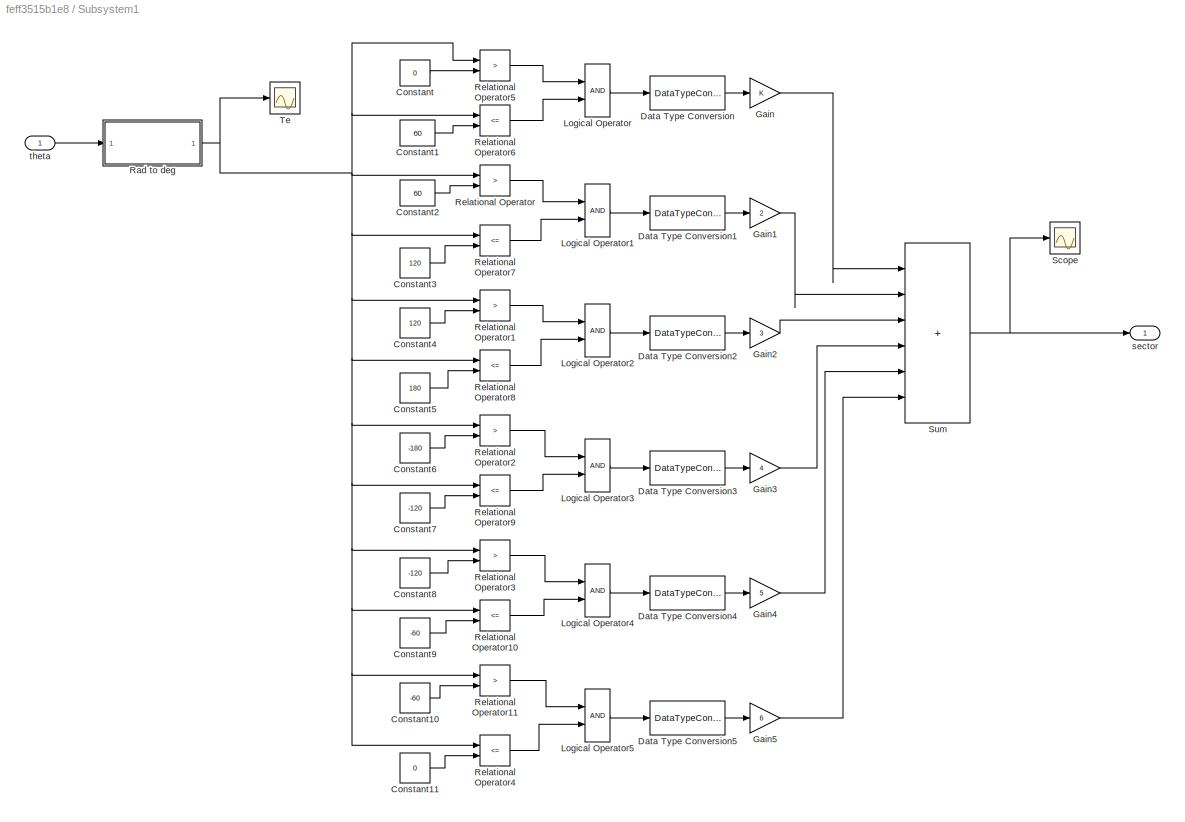
BLOCK [SubSystem] Subsystem1
  Ports = [1, 1]
  RequestExecContextInheritance = off
BLOCK [Constant] Subsystem1/Constant
  Value = 0
BLOCK [Constant] Subsystem1/Constant1
  Value = 60
BLOCK [Constant] Subsystem1/Constant10
  Value = -60
BLOCK [Constant] Subsystem1/Constant11
  Value = 0
BLOCK [Constant] Subsystem1/Constant2
  Value = 60
BLOCK [Constant] Subsystem1/Constant3
  Value = 120
BLOCK [Constant] Subsystem1/Constant4
  Value = 120
BLOCK [Constant] Subsystem1/Constant5
  Value = 180
BLOCK [Constant] Subsystem1/Constant6
  Value = -180
BLOCK [Constant] Subsystem1/Constant7
  Value = -120
BLOCK [Constant] Subsystem1/Constant8
  Value = -120
BLOCK [Constant] Subsystem1/Constant9
  Value = -60
BLOCK [DataTypeConversion] Subsystem1/Data Type Conversion
  RndMeth = Floor
  SaturateOnIntegerOverflow = off
BLOCK [DataTypeConversion] Subsystem1/Data Type Conversion1
  RndMeth = Floor
  SaturateOnIntegerOverflow = off
BLOCK [DataTypeConversion] Subsystem1/Data Type Conversion2
  RndMeth = Floor
  SaturateOnIntegerOverflow = off
BLOCK [DataTypeConversion] Subsystem1/Data Type Conversion3
  RndMeth = Floor
  SaturateOnIntegerOverflow = off
BLOCK [DataTypeConversion] Subsystem1/Data Type Conversion4
  RndMeth = Floor
  SaturateOnIntegerOverflow = off
BLOCK [DataTypeConversion] Subsystem1/Data Type Conversion5
  RndMeth = Floor
  SaturateOnIntegerOverflow = off
BLOCK [Gain] Subsystem1/Gain
BLOCK [Gain] Subsystem1/Gain1
  Gain = 2
BLOCK [Gain] Subsystem1/Gain2
  Gain = 3
BLOCK [Gain] Subsystem1/Gain3
  Gain = 4
BLOCK [Gain] Subsystem1/Gain4
  Gain = 5
BLOCK [Gain] Subsystem1/Gain5
  Gain = 6
BLOCK [Logic] Subsystem1/Logical Operator
  AllPortsSameDT = off
  OutDataTypeStr = boolean
  Ports = [2, 1]
BLOCK [Logic] Subsystem1/Logical Operator1
  AllPortsSameDT = off
  OutDataTypeStr = boolean
  Ports = [2, 1]
BLOCK [Logic] Subsystem1/Logical Operator2
  AllPortsSameDT = off
  OutDataTypeStr = boolean
  Ports = [2, 1]
BLOCK [Logic] Subsystem1/Logical Operator3
  AllPortsSameDT = off
  OutDataTypeStr = boolean
  Ports = [2, 1]
BLOCK [Logic] Subsystem1/Logical Operator4
  AllPortsSameDT = off
  OutDataTypeStr = boolean
  Ports = [2, 1]
BLOCK [Logic] Subsystem1/Logical Operator5
  AllPortsSameDT = off
  OutDataTypeStr = boolean
  Ports = [2, 1]
BLOCK [SubSystem] Subsystem1/Rad to deg
  Ports = [1, 1]
  RequestExecContextInheritance = off
BLOCK [Scope] Subsystem1/Rad to deg/Te
  Floating = off
  NumInputPorts = 1
  Ports = [1]
  ScopeSpecificationString = Simulink.scopes.TimeScopeBlockCfg('CurrentConfiguration', extmgr.ConfigurationSet(extmgr.Configuration('Core','General UI',true),extmgr.Configuration('Core','Source UI',true),extmgr.Configuration('Sources','WiredSimulink',true,'DataLoggingVariableName','ScopeData1'),extmgr.Configuration('Visuals','Time Domain',true,'SerializedDisplays',{struct('MinYLimReal','-3.50746','MaxYLimReal','3.38854','YLab...<+1453ch>
BLOCK [Scope] Subsystem1/Rad to deg/Te1
  Floating = off
  NumInputPorts = 1
  Ports = [1]
  ScopeSpecificationString = Simulink.scopes.TimeScopeBlockCfg('CurrentConfiguration', extmgr.ConfigurationSet(extmgr.Configuration('Core','General UI',true),extmgr.Configuration('Core','Source UI',true),extmgr.Configuration('Sources','WiredSimulink',true,'DataLoggingVariableName','ScopeData2'),extmgr.Configuration('Visuals','Time Domain',true,'SerializedDisplays',{struct('MinYLimReal','-77.93578','MaxYLimReal','701.42202','Y...<+1374ch>
BLOCK [Trigonometry] Subsystem1/Rad to deg/Trigonometric Function
  Ports = [1, 1]
BLOCK [Trigonometry] Subsystem1/Rad to deg/Trigonometric Function1
  Operator = cos
  Ports = [1, 1]
BLOCK [Trigonometry] Subsystem1/Rad to deg/Trigonometric Function2
  Operator = atan2
  Ports = [2, 1]
BLOCK [Gain] Subsystem1/Rad to deg/rad2deg
  Gain = 180/pi
  OutDataTypeStr = Inherit: Same as input
  ParamDataTypeStr = Inherit: Same as input
  SaturateOnIntegerOverflow = on
BLOCK [Inport] Subsystem1/Rad to deg/theta
BLOCK [Outport] Subsystem1/Rad to deg/theta d
BLOCK [RelationalOperator] Subsystem1/Relational Operator
  InputSameDT = off
  Operator = >
  OutDataTypeStr = boolean
  Ports = [2, 1]
  ZeroCross = off
BLOCK [RelationalOperator] Subsystem1/Relational Operator1
  InputSameDT = off
  Operator = >
  OutDataTypeStr = boolean
  Ports = [2, 1]
  ZeroCross = off
BLOCK [RelationalOperator] Subsystem1/Relational Operator10
  InputSameDT = off
  Operator = <=
  OutDataTypeStr = boolean
  Ports = [2, 1]
  ZeroCross = off
BLOCK [RelationalOperator] Subsystem1/Relational Operator11
  InputSameDT = off
  Operator = >
  OutDataTypeStr = boolean
  Ports = [2, 1]
  ZeroCross = off
BLOCK [RelationalOperator] Subsystem1/Relational Operator2
  InputSameDT = off
  Operator = >
  OutDataTypeStr = boolean
  Ports = [2, 1]
  ZeroCross = off
BLOCK [RelationalOperator] Subsystem1/Relational Operator3
  InputSameDT = off
  Operator = >
  OutDataTypeStr = boolean
  Ports = [2, 1]
  ZeroCross = off
BLOCK [RelationalOperator] Subsystem1/Relational Operator4
  InputSameDT = off
  Operator = <=
  OutDataTypeStr = boolean
  Ports = [2, 1]
  ZeroCross = off
BLOCK [RelationalOperator] Subsystem1/Relational Operator5
  InputSameDT = off
  Operator = >
  OutDataTypeStr = boolean
  Ports = [2, 1]
  ZeroCross = off
BLOCK [RelationalOperator] Subsystem1/Relational Operator6
  InputSameDT = off
  Operator = <=
  OutDataTypeStr = boolean
  Ports = [2, 1]
  ZeroCross = off
BLOCK [RelationalOperator] Subsystem1/Relational Operator7
  InputSameDT = off
  Operator = <=
  OutDataTypeStr = boolean
  Ports = [2, 1]
  ZeroCross = off
BLOCK [RelationalOperator] Subsystem1/Relational Operator8
  InputSameDT = off
  Operator = <=
  OutDataTypeStr = boolean
  Ports = [2, 1]
  ZeroCross = off
BLOCK [RelationalOperator] Subsystem1/Relational Operator9
  InputSameDT = off
  Operator = <=
  OutDataTypeStr = boolean
  Ports = [2, 1]
  ZeroCross = off
BLOCK [Scope] Subsystem1/Scope
  Floating = off
  NumInputPorts = 1
  Ports = [1]
  ScopeSpecificationString = Simulink.scopes.TimeScopeBlockCfg('CurrentConfiguration', extmgr.ConfigurationSet(extmgr.Configuration('Core','General UI',true),extmgr.Configuration('Core','Source UI',true),extmgr.Configuration('Sources','WiredSimulink',true,'DataLoggingVariableName','ScopeData7'),extmgr.Configuration('Visuals','Time Domain',true,'SerializedDisplays',{struct('MinYLimReal','0.79132','MaxYLimReal','6.12437','YLabe...<+1431ch>
BLOCK [Sum] Subsystem1/Sum
  IconShape = rectangular
  Inputs = |++++++
  Ports = [6, 1]
BLOCK [Scope] Subsystem1/Te
  Floating = off
  NumInputPorts = 1
  Ports = [1]
  ScopeSpecificationString = Simulink.scopes.TimeScopeBlockCfg('CurrentConfiguration', extmgr.ConfigurationSet(extmgr.Configuration('Core','General UI',true),extmgr.Configuration('Core','Source UI',true),extmgr.Configuration('Sources','WiredSimulink',true,'DataLoggingVariableName','ScopeData12','DataLoggingSaveFormat','StructureWithTime','DataLoggingLimitDataPoints',true,'DataLoggingDecimation','1','DataLoggingDecimateData',t...<+1825ch>
BLOCK [Outport] Subsystem1/sector
BLOCK [Inport] Subsystem1/theta
BLOCK [SubSystem] Subsystem2
  Ports = [3, 3]
  RequestExecContextInheritance = off
BLOCK [Reference] Subsystem2/Controlled Current Source  REF=fl_lib/Electrical/Electrical Sources/Controlled Current
Source
  NameLocation = right
  Ports = [0, 0, 0, 0, 0, 1, 2]
  SourceBlock = fl_lib/Electrical/Electrical Sources/Controlled Current\nSource
  SourceProductBaseCode = SS
  SourceType = Controlled Current\nSource
BLOCK [Reference] Subsystem2/Controlled Current Source1  REF=fl_lib/Electrical/Electrical Sources/Controlled Current
Source
  NameLocation = right
  Ports = [0, 0, 0, 0, 0, 1, 2]
  SourceBlock = fl_lib/Electrical/Electrical Sources/Controlled Current\nSource
  SourceProductBaseCode = SS
  SourceType = Controlled Current\nSource
BLOCK [Reference] Subsystem2/Controlled Current Source2  REF=fl_lib/Electrical/Electrical Sources/Controlled Current
Source
  NameLocation = right
  Ports = [0, 0, 0, 0, 0, 1, 2]
  SourceBlock = fl_lib/Electrical/Electrical Sources/Controlled Current\nSource
  SourceProductBaseCode = SS
  SourceType = Controlled Current\nSource
BLOCK [Reference] Subsystem2/Current Sensor  REF=fl_lib/Electrical/Electrical Sensors/Current Sensor
  Ports = [0, 0, 0, 0, 0, 1, 2]
  SourceBlock = fl_lib/Electrical/Electrical Sensors/Current Sensor
  SourceProductBaseCode = SS
  SourceType = Current Sensor
BLOCK [Reference] Subsystem2/Current Sensor1  REF=fl_lib/Electrical/Electrical Sensors/Current Sensor
  Ports = [0, 0, 0, 0, 0, 1, 2]
  SourceBlock = fl_lib/Electrical/Electrical Sensors/Current Sensor
  SourceProductBaseCode = SS
  SourceType = Current Sensor
BLOCK [Reference] Subsystem2/Current Sensor2  REF=fl_lib/Electrical/Electrical Sensors/Current Sensor
  Ports = [0, 0, 0, 0, 0, 1, 2]
  SourceBlock = fl_lib/Electrical/Electrical Sensors/Current Sensor
  SourceProductBaseCode = SS
  SourceType = Current Sensor
BLOCK [DataTypeConversion] Subsystem2/Data Type Conversion
  OutDataTypeStr = double
  RndMeth = Floor
  SaturateOnIntegerOverflow = off
BLOCK [DataTypeConversion] Subsystem2/Data Type Conversion1
  OutDataTypeStr = double
  RndMeth = Floor
  SaturateOnIntegerOverflow = off
BLOCK [DataTypeConversion] Subsystem2/Data Type Conversion2
  OutDataTypeStr = double
  RndMeth = Floor
  SaturateOnIntegerOverflow = off
BLOCK [Reference] Subsystem2/Electrical Reference5  REF=fl_lib/Electrical/Electrical Elements/Electrical Reference
  NameLocation = right
  Ports = [0, 0, 0, 0, 0, 1]
  SourceBlock = fl_lib/Electrical/Electrical Elements/Electrical Reference
  SourceProductBaseCode = SS
  SourceType = Electrical Reference
BLOCK [Inport] Subsystem2/Ia
BLOCK [Outport] Subsystem2/Iames
BLOCK [Inport] Subsystem2/Ib
  Port = 2
BLOCK [Outport] Subsystem2/Ibmes
  Port = 2
BLOCK [Inport] Subsystem2/Ic
  Port = 3
BLOCK [Outport] Subsystem2/Icmes
  Port = 3
BLOCK [Reference] Subsystem2/PS-Simulink Converter1  REF=nesl_utility/PS-Simulink
Converter
  Ports = [0, 1, 0, 0, 0, 1]
  SourceBlock = nesl_utility/PS-Simulink\nConverter
  SourceProductBaseCode = PW,SS
  SourceType = PS-Simulink\nConverter
BLOCK [Reference] Subsystem2/PS-Simulink Converter2  REF=nesl_utility/PS-Simulink
Converter
  Ports = [0, 1, 0, 0, 0, 1]
  SourceBlock = nesl_utility/PS-Simulink\nConverter
  SourceProductBaseCode = PW,SS
  SourceType = PS-Simulink\nConverter
BLOCK [Reference] Subsystem2/PS-Simulink Converter3  REF=nesl_utility/PS-Simulink
Converter
  Ports = [0, 1, 0, 0, 0, 1]
  SourceBlock = nesl_utility/PS-Simulink\nConverter
  SourceProductBaseCode = PW,SS
  SourceType = PS-Simulink\nConverter
BLOCK [Reference] Subsystem2/Simulink-PS Converter  REF=nesl_utility/Simulink-PS
Converter
  Ports = [1, 0, 0, 0, 0, 0, 1]
  SourceBlock = nesl_utility/Simulink-PS\nConverter
  SourceProductBaseCode = PW,SS
  SourceType = Simulink-PS\nConverter
BLOCK [Reference] Subsystem2/Simulink-PS Converter1  REF=nesl_utility/Simulink-PS
Converter
  Ports = [1, 0, 0, 0, 0, 0, 1]
  SourceBlock = nesl_utility/Simulink-PS\nConverter
  SourceProductBaseCode = PW,SS
  SourceType = Simulink-PS\nConverter
BLOCK [Reference] Subsystem2/Simulink-PS Converter2  REF=nesl_utility/Simulink-PS
Converter
  Ports = [1, 0, 0, 0, 0, 0, 1]
  SourceBlock = nesl_utility/Simulink-PS\nConverter
  SourceProductBaseCode = PW,SS
  SourceType = Simulink-PS\nConverter
BLOCK [Reference] Subsystem2/Solver Configuration  REF=nesl_utility/Solver
Configuration
  Ports = [0, 0, 0, 0, 0, 0, 1]
  SourceBlock = nesl_utility/Solver\nConfiguration
  SourceProductBaseCode = PW,SS
  SourceType = Solver\nConfiguration
BLOCK [SubSystem] Subsystem5
  Ports = [3, 6]
  RequestExecContextInheritance = off
BLOCK [Clock] Subsystem5/Clock
BLOCK [Reference] Subsystem5/Compare To Constant  REF=simulink/Logic and Bit
Operations/Compare
To Constant
  Ports = [1, 1]
  SourceBlock = simulink/Logic and Bit\nOperations/Compare\nTo Constant
  SourceProductBaseCode = SL
  SourceType = Compare To Constant
BLOCK [SubSystem] Subsystem5/Enabled Subsystem
  Ports = [1, 2, 1]
  RequestExecContextInheritance = off
  TreatAsAtomicUnit = on
BLOCK [EnablePort] Subsystem5/Enabled Subsystem/Enable
  Ports = []
BLOCK [Inport] Subsystem5/Enabled Subsystem/Ia
BLOCK [Outport] Subsystem5/Enabled Subsystem/Iamin
  Port = 2
BLOCK [Reference] Subsystem5/Enabled Subsystem/MinMax Running Resettable  REF=simulink/Math
Operations/MinMax
Running
Resettable
  Ports = [2, 1]
  SourceBlock = simulink/Math\nOperations/MinMax\nRunning\nResettable
  SourceProductBaseCode = SL
  SourceType = MinMax Running Resettable
BLOCK [Reference] Subsystem5/Enabled Subsystem/MinMax Running Resettable1  REF=simulink/Math
Operations/MinMax
Running
Resettable
  Ports = [2, 1]
  SourceBlock = simulink/Math\nOperations/MinMax\nRunning\nResettable
  SourceProductBaseCode = SL
  SourceType = MinMax Running Resettable
BLOCK [Outport] Subsystem5/Enabled Subsystem/Out1
BLOCK [SubSystem] Subsystem5/Enabled Subsystem1
  Ports = [1, 2, 1]
  RequestExecContextInheritance = off
  TreatAsAtomicUnit = on
BLOCK [EnablePort] Subsystem5/Enabled Subsystem1/Enable
  Ports = []
BLOCK [Inport] Subsystem5/Enabled Subsystem1/Ia
BLOCK [Reference] Subsystem5/Enabled Subsystem1/MinMax Running Resettable  REF=simulink/Math
Operations/MinMax
Running
Resettable
  Ports = [2, 1]
  SourceBlock = simulink/Math\nOperations/MinMax\nRunning\nResettable
  SourceProductBaseCode = SL
  SourceType = MinMax Running Resettable
BLOCK [Reference] Subsystem5/Enabled Subsystem1/MinMax Running Resettable1  REF=simulink/Math
Operations/MinMax
Running
Resettable
  Ports = [2, 1]
  SourceBlock = simulink/Math\nOperations/MinMax\nRunning\nResettable
  SourceProductBaseCode = SL
  SourceType = MinMax Running Resettable
BLOCK [Outport] Subsystem5/Enabled Subsystem1/out1
BLOCK [Outport] Subsystem5/Enabled Subsystem1/out2
  Port = 2
BLOCK [SubSystem] Subsystem5/Enabled Subsystem2
  Ports = [1, 2, 1]
  RequestExecContextInheritance = off
  TreatAsAtomicUnit = on
BLOCK [EnablePort] Subsystem5/Enabled Subsystem2/Enable
  Ports = []
BLOCK [Inport] Subsystem5/Enabled Subsystem2/Ia
BLOCK [Reference] Subsystem5/Enabled Subsystem2/MinMax Running Resettable  REF=simulink/Math
Operations/MinMax
Running
Resettable
  Ports = [2, 1]
  SourceBlock = simulink/Math\nOperations/MinMax\nRunning\nResettable
  SourceProductBaseCode = SL
  SourceType = MinMax Running Resettable
BLOCK [Reference] Subsystem5/Enabled Subsystem2/MinMax Running Resettable1  REF=simulink/Math
Operations/MinMax
Running
Resettable
  Ports = [2, 1]
  SourceBlock = simulink/Math\nOperations/MinMax\nRunning\nResettable
  SourceProductBaseCode = SL
  SourceType = MinMax Running Resettable
BLOCK [Outport] Subsystem5/Enabled Subsystem2/out1
BLOCK [Outport] Subsystem5/Enabled Subsystem2/out2
  Port = 2
BLOCK [Inport] Subsystem5/Ia
BLOCK [Outport] Subsystem5/Iamax
BLOCK [Outport] Subsystem5/Iamin
  Port = 2
BLOCK [Inport] Subsystem5/Ib
  Port = 2
BLOCK [Outport] Subsystem5/Ibmax
  Port = 3
BLOCK [Outport] Subsystem5/Ibmin
  Port = 4
BLOCK [Inport] Subsystem5/Ic
  Port = 3
BLOCK [Outport] Subsystem5/Icmin
  Port = 6
BLOCK [Outport] Subsystem5/icmax
  Port = 5
BLOCK [LampBlock] T1
BLOCK [LampBlock] T2
BLOCK [LampBlock] T3
BLOCK [LampBlock] T4
BLOCK [LampBlock] T5
BLOCK [LampBlock] T6
BLOCK [Terminator] Terminator10
BLOCK [Terminator] Terminator11
BLOCK [Terminator] Terminator12
BLOCK [Terminator] Terminator13
BLOCK [Terminator] Terminator7
BLOCK [Terminator] Terminator8
BLOCK [Terminator] Terminator9
BLOCK [SubSystem] Three-phase Inverter model
  Ports = [2, 3]
  RequestExecContextInheritance = off
BLOCK [Constant] Three-phase Inverter model/Constant
  Value = 0
BLOCK [Constant] Three-phase Inverter model/Constant1
  Value = 0
BLOCK [Constant] Three-phase Inverter model/Constant2
  Value = 0
BLOCK [Reference] Three-phase Inverter model/Controlled Voltage Source1  REF=spsControlledVoltageSourceLib/Controlled Voltage Source
  NameLocation = right
  Ports = [1, 0, 0, 0, 0, 1, 1]
  SourceBlock = spsControlledVoltageSourceLib/Controlled Voltage Source
  SourceProductBaseCode = PS
  SourceType = Controlled Voltage Source
BLOCK [Inport] Three-phase Inverter model/Cs
BLOCK [Demux] Three-phase Inverter model/Demux
  Outputs = 6
  Ports = [1, 6]
BLOCK [Reference] Three-phase Inverter model/Ground  REF=spsGroundLib/Ground
  NameLocation = right
  Ports = [0, 0, 0, 0, 0, 1]
  SourceBlock = spsGroundLib/Ground
  SourceProductBaseCode = PS
  SourceType = Ground
BLOCK [Reference] Three-phase Inverter model/IGBT//Diode  REF=spsIGBTDiodeLib/IGBT//Diode
  NameLocation = left
  Ports = [1, 1, 0, 0, 0, 1, 1]
  SourceBlock = spsIGBTDiodeLib/IGBT//Diode
  SourceProductBaseCode = PS
  SourceType = IGBT/Diode
BLOCK [Reference] Three-phase Inverter model/IGBT//Diode1  REF=spsIGBTDiodeLib/IGBT//Diode
  NameLocation = left
  Ports = [1, 1, 0, 0, 0, 1, 1]
  SourceBlock = spsIGBTDiodeLib/IGBT//Diode
  SourceProductBaseCode = PS
  SourceType = IGBT/Diode
BLOCK [Reference] Three-phase Inverter model/IGBT//Diode2  REF=spsIGBTDiodeLib/IGBT//Diode
  NameLocation = left
  Ports = [1, 1, 0, 0, 0, 1, 1]
  SourceBlock = spsIGBTDiodeLib/IGBT//Diode
  SourceProductBaseCode = PS
  SourceType = IGBT/Diode
BLOCK [Reference] Three-phase Inverter model/IGBT//Diode3  REF=spsIGBTDiodeLib/IGBT//Diode
  NameLocation = left
  Ports = [1, 1, 0, 0, 0, 1, 1]
  SourceBlock = spsIGBTDiodeLib/IGBT//Diode
  SourceProductBaseCode = PS
  SourceType = IGBT/Diode
BLOCK [Reference] Three-phase Inverter model/IGBT//Diode4  REF=spsIGBTDiodeLib/IGBT//Diode
  NameLocation = left
  Ports = [1, 1, 0, 0, 0, 1, 1]
  SourceBlock = spsIGBTDiodeLib/IGBT//Diode
  SourceProductBaseCode = PS
  SourceType = IGBT/Diode
BLOCK [Reference] Three-phase Inverter model/IGBT//Diode5  REF=spsIGBTDiodeLib/IGBT//Diode
  NameLocation = left
  Ports = [1, 1, 0, 0, 0, 1, 1]
  SourceBlock = spsIGBTDiodeLib/IGBT//Diode
  SourceProductBaseCode = PS
  SourceType = IGBT/Diode
BLOCK [SubSystem] Three-phase Inverter model/Signal Builder
  ClipboardFcn = sigbuilder_block('clipboard');
  CloseFcn = sigbuilder_block('close');
  ContinueFcn = sigbuilder_block('continue');
  CopyFcn = sigbuilder_block('copy');
  DeleteFcn = sigbuilder_block('delete');
  LoadFcn = sigbuilder_block('load');
  MaskHideContents = on
  ModelCloseFcn = sigbuilder_block('modelClose');
  NameChangeFcn = sigbuilder_block('namechange');
  OpenFcn = sigbuilder_block('open',[437.6 199.2 550.4 400 ]);
  PauseFcn = sigbuilder_block('pause');
  Ports = [0, 1]
  PreSaveFcn = sigbuilder_block('preSave');
  RequestExecContextInheritance = off
  StartFcn = sigbuilder_block('start');
  StopFcn = sigbuilder_block('stop');
  Tag = STV Subsys
BLOCK [Demux] Three-phase Inverter model/Signal Builder/Demux
  DisplayOption = none
  Outputs = 1
  Ports = [1, 1]
  Tag = STV Demux
BLOCK [FromWorkspace] Three-phase Inverter model/Signal Builder/FromWs
  Tag = STV FromWs
  VariableName = tuvar
BLOCK [Outport] Three-phase Inverter model/Signal Builder/Signal 1
  Tag = STV Outport
BLOCK [SubSystem] Three-phase Inverter model/Signal Builder1
  ClipboardFcn = sigbuilder_block('clipboard');
  CloseFcn = sigbuilder_block('close');
  ContinueFcn = sigbuilder_block('continue');
  CopyFcn = sigbuilder_block('copy');
  DeleteFcn = sigbuilder_block('delete');
  LoadFcn = sigbuilder_block('load');
  MaskHideContents = on
  ModelCloseFcn = sigbuilder_block('modelClose');
  NameChangeFcn = sigbuilder_block('namechange');
  OpenFcn = sigbuilder_block('open',[437.6 199.2 550.4 400 ]);
  PauseFcn = sigbuilder_block('pause');
  Ports = [0, 1]
  PreSaveFcn = sigbuilder_block('preSave');
  RequestExecContextInheritance = off
  StartFcn = sigbuilder_block('start');
  StopFcn = sigbuilder_block('stop');
  Tag = STV Subsys
BLOCK [Demux] Three-phase Inverter model/Signal Builder1/Demux
  DisplayOption = none
  Outputs = 1
  Ports = [1, 1]
  Tag = STV Demux
BLOCK [FromWorkspace] Three-phase Inverter model/Signal Builder1/FromWs
  Tag = STV FromWs
  VariableName = tuvar
BLOCK [Outport] Three-phase Inverter model/Signal Builder1/Signal 1
  Tag = STV Outport
BLOCK [SubSystem] Three-phase Inverter model/Signal Builder2
  ClipboardFcn = sigbuilder_block('clipboard');
  CloseFcn = sigbuilder_block('close');
  ContinueFcn = sigbuilder_block('continue');
  CopyFcn = sigbuilder_block('copy');
  DeleteFcn = sigbuilder_block('delete');
  LoadFcn = sigbuilder_block('load');
  MaskHideContents = on
  ModelCloseFcn = sigbuilder_block('modelClose');
  NameChangeFcn = sigbuilder_block('namechange');
  OpenFcn = sigbuilder_block('open',[437.6 199.2 550.4 400 ]);
  PauseFcn = sigbuilder_block('pause');
  Ports = [0, 1]
  PreSaveFcn = sigbuilder_block('preSave');
  RequestExecContextInheritance = off
  StartFcn = sigbuilder_block('start');
  StopFcn = sigbuilder_block('stop');
  Tag = STV Subsys
BLOCK [Demux] Three-phase Inverter model/Signal Builder2/Demux
  DisplayOption = none
  Outputs = 1
  Ports = [1, 1]
  Tag = STV Demux
BLOCK [FromWorkspace] Three-phase Inverter model/Signal Builder2/FromWs
  Tag = STV FromWs
  VariableName = tuvar
BLOCK [Outport] Three-phase Inverter model/Signal Builder2/Signal 1
  Tag = STV Outport
BLOCK [Switch] Three-phase Inverter model/Switch
  Criteria = u2 > Threshold
  InputSameDT = off
  SaturateOnIntegerOverflow = off
BLOCK [Switch] Three-phase Inverter model/Switch1
  Criteria = u2 > Threshold
  InputSameDT = off
  SaturateOnIntegerOverflow = off
BLOCK [Switch] Three-phase Inverter model/Switch2
  Criteria = u2 > Threshold
  InputSameDT = off
  SaturateOnIntegerOverflow = off
BLOCK [Reference] Three-phase Inverter model/Three-Phase V-I Measurement  REF=spsThreePhaseVIMeasurementLib/Three-Phase
V-I Measurement
  Ports = [0, 1, 0, 0, 0, 3, 3]
  SourceBlock = spsThreePhaseVIMeasurementLib/Three-Phase\nV-I Measurement
  SourceProductBaseCode = PS
  SourceType = Three-Phase VI Measurement
BLOCK [Outport] Three-phase Inverter model/Vab
BLOCK [Outport] Three-phase Inverter model/Vbc
  Port = 2
BLOCK [Outport] Three-phase Inverter model/Vdc
  Port = 3
BLOCK [Reference] Three-phase Inverter model/Voltage Measurement1  REF=spsVoltageMeasurementLib/Voltage Measurement
  Ports = [0, 1, 0, 0, 0, 2]
  SourceBlock = spsVoltageMeasurementLib/Voltage Measurement
  SourceProductBaseCode = PS
  SourceType = Voltage Measurement
BLOCK [Reference] Three-phase Inverter model/Voltage Measurement2  REF=spsVoltageMeasurementLib/Voltage Measurement
  Ports = [0, 1, 0, 0, 0, 2]
  SourceBlock = spsVoltageMeasurementLib/Voltage Measurement
  SourceProductBaseCode = PS
  SourceType = Voltage Measurement
BLOCK [Reference] Three-phase Inverter model/Voltage Measurement3  REF=spsVoltageMeasurementLib/Voltage Measurement
  Ports = [0, 1, 0, 0, 0, 2]
  SourceBlock = spsVoltageMeasurementLib/Voltage Measurement
  SourceProductBaseCode = PS
  SourceType = Voltage Measurement
BLOCK [Inport] Three-phase Inverter model/gates
  Port = 2
BLOCK [ZeroOrderHold] Zero-Order Hold3
  SampleTime = -1
BLOCK [ZeroOrderHold] Zero-Order Hold4
  SampleTime = -1
BLOCK [ZeroOrderHold] Zero-Order Hold5
  SampleTime = -1
BLOCK [SubSystem] controller
  Ports = [2, 1]
  RequestExecContextInheritance = off
BLOCK [Sum] controller/Add
  IconShape = rectangular
  Ports = [2, 1]
BLOCK [Outport] controller/Cs
BLOCK [Gain] controller/Gain
  Gain = 0.1
BLOCK [Gain] controller/Gain1
  Gain = 50
BLOCK [Integrator] controller/Integrator
  Ports = [1, 1]
BLOCK [Sum] controller/Sum
  Inputs = |+-
  Ports = [2, 1]
BLOCK [Inport] controller/w
  Port = 2
BLOCK [Inport] controller/wref
BLOCK [SubSystem] current sensor
  Ports = [3, 3]
  RequestExecContextInheritance = off
BLOCK [Reference] current sensor/Controlled Current Source  REF=fl_lib/Electrical/Electrical Sources/Controlled Current
Source
  NameLocation = right
  Ports = [0, 0, 0, 0, 0, 1, 2]
  SourceBlock = fl_lib/Electrical/Electrical Sources/Controlled Current\nSource
  SourceProductBaseCode = SS
  SourceType = Controlled Current\nSource
BLOCK [Reference] current sensor/Controlled Current Source1  REF=fl_lib/Electrical/Electrical Sources/Controlled Current
Source
  NameLocation = right
  Ports = [0, 0, 0, 0, 0, 1, 2]
  SourceBlock = fl_lib/Electrical/Electrical Sources/Controlled Current\nSource
  SourceProductBaseCode = SS
  SourceType = Controlled Current\nSource
BLOCK [Reference] current sensor/Controlled Current Source2  REF=fl_lib/Electrical/Electrical Sources/Controlled Current
Source
  NameLocation = right
  Ports = [0, 0, 0, 0, 0, 1, 2]
  SourceBlock = fl_lib/Electrical/Electrical Sources/Controlled Current\nSource
  SourceProductBaseCode = SS
  SourceType = Controlled Current\nSource
BLOCK [Reference] current sensor/Current Sensor  REF=fl_lib/Electrical/Electrical Sensors/Current Sensor
  Ports = [0, 0, 0, 0, 0, 1, 2]
  SourceBlock = fl_lib/Electrical/Electrical Sensors/Current Sensor
  SourceProductBaseCode = SS
  SourceType = Current Sensor
BLOCK [Reference] current sensor/Current Sensor1  REF=fl_lib/Electrical/Electrical Sensors/Current Sensor
  Ports = [0, 0, 0, 0, 0, 1, 2]
  SourceBlock = fl_lib/Electrical/Electrical Sensors/Current Sensor
  SourceProductBaseCode = SS
  SourceType = Current Sensor
BLOCK [Reference] current sensor/Current Sensor2  REF=fl_lib/Electrical/Electrical Sensors/Current Sensor
  Ports = [0, 0, 0, 0, 0, 1, 2]
  SourceBlock = fl_lib/Electrical/Electrical Sensors/Current Sensor
  SourceProductBaseCode = SS
  SourceType = Current Sensor
BLOCK [DataTypeConversion] current sensor/Data Type Conversion
  OutDataTypeStr = double
  RndMeth = Floor
  SaturateOnIntegerOverflow = off
BLOCK [DataTypeConversion] current sensor/Data Type Conversion1
  OutDataTypeStr = double
  RndMeth = Floor
  SaturateOnIntegerOverflow = off
BLOCK [DataTypeConversion] current sensor/Data Type Conversion2
  OutDataTypeStr = double
  RndMeth = Floor
  SaturateOnIntegerOverflow = off
BLOCK [Reference] current sensor/Electrical Reference5  REF=fl_lib/Electrical/Electrical Elements/Electrical Reference
  NameLocation = right
  Ports = [0, 0, 0, 0, 0, 1]
  SourceBlock = fl_lib/Electrical/Electrical Elements/Electrical Reference
  SourceProductBaseCode = SS
  SourceType = Electrical Reference
BLOCK [Inport] current sensor/Ia
BLOCK [Outport] current sensor/Iames
BLOCK [Inport] current sensor/Ib
  Port = 2
BLOCK [Outport] current sensor/Ibmes
  Port = 2
BLOCK [Inport] current sensor/Ic
  Port = 3
BLOCK [Outport] current sensor/Icmes
  Port = 3
BLOCK [Reference] current sensor/PS-Simulink Converter1  REF=nesl_utility/PS-Simulink
Converter
  Ports = [0, 1, 0, 0, 0, 1]
  SourceBlock = nesl_utility/PS-Simulink\nConverter
  SourceProductBaseCode = PW,SS
  SourceType = PS-Simulink\nConverter
BLOCK [Reference] current sensor/PS-Simulink Converter2  REF=nesl_utility/PS-Simulink
Converter
  Ports = [0, 1, 0, 0, 0, 1]
  SourceBlock = nesl_utility/PS-Simulink\nConverter
  SourceProductBaseCode = PW,SS
  SourceType = PS-Simulink\nConverter
BLOCK [Reference] current sensor/PS-Simulink Converter3  REF=nesl_utility/PS-Simulink
Converter
  Ports = [0, 1, 0, 0, 0, 1]
  SourceBlock = nesl_utility/PS-Simulink\nConverter
  SourceProductBaseCode = PW,SS
  SourceType = PS-Simulink\nConverter
BLOCK [Reference] current sensor/Simulink-PS Converter  REF=nesl_utility/Simulink-PS
Converter
  Ports = [1, 0, 0, 0, 0, 0, 1]
  SourceBlock = nesl_utility/Simulink-PS\nConverter
  SourceProductBaseCode = PW,SS
  SourceType = Simulink-PS\nConverter
BLOCK [Reference] current sensor/Simulink-PS Converter1  REF=nesl_utility/Simulink-PS
Converter
  Ports = [1, 0, 0, 0, 0, 0, 1]
  SourceBlock = nesl_utility/Simulink-PS\nConverter
  SourceProductBaseCode = PW,SS
  SourceType = Simulink-PS\nConverter
BLOCK [Reference] current sensor/Simulink-PS Converter2  REF=nesl_utility/Simulink-PS
Converter
  Ports = [1, 0, 0, 0, 0, 0, 1]
  SourceBlock = nesl_utility/Simulink-PS\nConverter
  SourceProductBaseCode = PW,SS
  SourceType = Simulink-PS\nConverter
BLOCK [Reference] current sensor/Solver Configuration  REF=nesl_utility/Solver
Configuration
  Ports = [0, 0, 0, 0, 0, 0, 1]
  SourceBlock = nesl_utility/Solver\nConfiguration
  SourceProductBaseCode = PW,SS
  SourceType = Solver\nConfiguration
BLOCK [Reference] powergui  REF=spspowerguiLib/powergui
  Ports = []
  Priority = 2
  SourceBlock = spspowerguiLib/powergui
  SourceProductBaseCode = PS
  SourceType = PSB option menu block
BLOCK [Gain] rad2rpm
  Gain = 30/pi
ANNOTATION BLDC Model/emf generation/Phase a: Phi' r
ANNOTATION BLDC Model/emf generation/Phase b: Phi' r
ANNOTATION BLDC Model/emf generation/Phase c: Phi' r
LINE BLDC Model/Tm:1 -> BLDC Model/speed generator:5
LINE BLDC Model/current generater/Demux:1 -> BLDC Model/current generater/Ia:1
LINE BLDC Model/current generater/Demux:2 -> BLDC Model/current generater/Ib:1
LINE BLDC Model/current generater/Demux:3 -> BLDC Model/current generater/Ic:1
LINE BLDC Model/current generater/Mux1:1 -> BLDC Model/current generater/state equations:2
LINE BLDC Model/current generater/Mux2:1 -> BLDC Model/current generater/state equations:1
LINE BLDC Model/current generater/ea:1 -> BLDC Model/current generater/Mux1:1
LINE BLDC Model/current generater/eb:1 -> BLDC Model/current generater/Mux1:2
LINE BLDC Model/current generater/ec:1 -> BLDC Model/current generater/Mux1:3
NET BLDC Model/current generater/state equations/Eabc:1 -> BLDC Model/current generater/state equations/State Ib:2, BLDC Model/current generater/state equations/state Ia:2
LINE BLDC Model/current generater/state equations/Mux5:1 -> BLDC Model/current generater/state equations/is:1
LINE BLDC Model/current generater/state equations/State Ib/Eabc:1 -> BLDC Model/current generater/state equations/State Ib/Mux:2
LINE BLDC Model/current generater/state equations/State Ib/Fcn:1 -> BLDC Model/current generater/state equations/State Ib/Gain2:1
LINE BLDC Model/current generater/state equations/State Ib/Gain2:1 -> BLDC Model/current generater/state equations/State Ib/s :1
LINE BLDC Model/current generater/state equations/State Ib/Mux:1 -> BLDC Model/current generater/state equations/State Ib/Fcn:1
LINE BLDC Model/current generater/state equations/State Ib/Vab,Vbc:1 -> BLDC Model/current generater/state equations/State Ib/Mux:1
NET BLDC Model/current generater/state equations/State Ib/s :1 -> BLDC Model/current generater/state equations/State Ib/Mux:3, BLDC Model/current generater/state equations/State Ib/i:1
NET BLDC Model/current generater/state equations/State Ib:1 -> BLDC Model/current generater/state equations/Mux5:2, BLDC Model/current generater/state equations/Sum1:2
LINE BLDC Model/current generater/state equations/Sum1:1 -> BLDC Model/current generater/state equations/Mux5:3
NET BLDC Model/current generater/state equations/Vab,Vbc:1 -> BLDC Model/current generater/state equations/State Ib:1, BLDC Model/current generater/state equations/state Ia:1
LINE BLDC Model/current generater/state equations/state Ia/Eabc:1 -> BLDC Model/current generater/state equations/state Ia/Mux:2
LINE BLDC Model/current generater/state equations/state Ia/Fcn:1 -> BLDC Model/current generater/state equations/state Ia/Gain2:1
LINE BLDC Model/current generater/state equations/state Ia/Gain2:1 -> BLDC Model/current generater/state equations/state Ia/s :1
LINE BLDC Model/current generater/state equations/state Ia/Mux:1 -> BLDC Model/current generater/state equations/state Ia/Fcn:1
LINE BLDC Model/current generater/state equations/state Ia/Vab,Vbc:1 -> BLDC Model/current generater/state equations/state Ia/Mux:1
NET BLDC Model/current generater/state equations/state Ia/s :1 -> BLDC Model/current generater/state equations/state Ia/Mux:3, BLDC Model/current generater/state equations/state Ia/i:1
NET BLDC Model/current generater/state equations/state Ia:1 -> BLDC Model/current generater/state equations/Mux5:1, BLDC Model/current generater/state equations/Sum1:1
LINE BLDC Model/current generater/state equations:1 -> BLDC Model/current generater/Demux:1
LINE BLDC Model/current generater/vab:1 -> BLDC Model/current generater/Mux2:1
LINE BLDC Model/current generater/vbc:1 -> BLDC Model/current generater/Mux2:2
NET BLDC Model/current generater:1 -> BLDC Model/Ia:1, BLDC Model/speed generator:1
NET BLDC Model/current generater:2 -> BLDC Model/Ib:1, BLDC Model/speed generator:2
NET BLDC Model/current generater:3 -> BLDC Model/Ic:1, BLDC Model/speed generator:3
LINE BLDC Model/emf generation/Mux7:1 -> BLDC Model/emf generation/phi'r abc:1
NET BLDC Model/emf generation/Mux:1 -> BLDC Model/emf generation/Phase a:1, BLDC Model/emf generation/Phase b:1, BLDC Model/emf generation/Phase c:1
LINE BLDC Model/emf generation/Phase a/Demux:1 -> BLDC Model/emf generation/Phase a/cos (u(1)):1
LINE BLDC Model/emf generation/Phase a/Demux:2 -> BLDC Model/emf generation/Phase a/Product1:2
NET BLDC Model/emf generation/Phase a/Gain4:1 -> BLDC Model/emf generation/Phase a/Product1:1, BLDC Model/emf generation/Phase a/phi'r:1
LINE BLDC Model/emf generation/Phase a/Product1:1 -> BLDC Model/emf generation/Phase a/E:1
LINE BLDC Model/emf generation/Phase a/cos (u(1))/Fcn:1 -> BLDC Model/emf generation/Phase a/cos (u(1))/Saturation:1
LINE BLDC Model/emf generation/Phase a/cos (u(1))/In1:1 -> BLDC Model/emf generation/Phase a/cos (u(1))/Fcn:1
LINE BLDC Model/emf generation/Phase a/cos (u(1))/Saturation:1 -> BLDC Model/emf generation/Phase a/cos (u(1))/Out1:1
LINE BLDC Model/emf generation/Phase a/cos (u(1)):1 -> BLDC Model/emf generation/Phase a/Gain4:1
LINE BLDC Model/emf generation/Phase a/the,we:1 -> BLDC Model/emf generation/Phase a/Demux:1
LINE BLDC Model/emf generation/Phase a:1 -> BLDC Model/emf generation/Mux7:1
LINE BLDC Model/emf generation/Phase a:2 -> BLDC Model/emf generation/ea:1
LINE BLDC Model/emf generation/Phase b/Demux:1 -> BLDC Model/emf generation/Phase b/cos (u(1)):1
LINE BLDC Model/emf generation/Phase b/Demux:2 -> BLDC Model/emf generation/Phase b/Product1:2
NET BLDC Model/emf generation/Phase b/Gain4:1 -> BLDC Model/emf generation/Phase b/Product1:1, BLDC Model/emf generation/Phase b/phi'r:1
LINE BLDC Model/emf generation/Phase b/Product1:1 -> BLDC Model/emf generation/Phase b/E:1
LINE BLDC Model/emf generation/Phase b/cos (u(1))/Fcn:1 -> BLDC Model/emf generation/Phase b/cos (u(1))/Saturation:1
LINE BLDC Model/emf generation/Phase b/cos (u(1))/In1:1 -> BLDC Model/emf generation/Phase b/cos (u(1))/Fcn:1
LINE BLDC Model/emf generation/Phase b/cos (u(1))/Saturation:1 -> BLDC Model/emf generation/Phase b/cos (u(1))/Out1:1
LINE BLDC Model/emf generation/Phase b/cos (u(1)):1 -> BLDC Model/emf generation/Phase b/Gain4:1
LINE BLDC Model/emf generation/Phase b/the,we:1 -> BLDC Model/emf generation/Phase b/Demux:1
LINE BLDC Model/emf generation/Phase b:1 -> BLDC Model/emf generation/Mux7:2
LINE BLDC Model/emf generation/Phase b:2 -> BLDC Model/emf generation/eb:1
LINE BLDC Model/emf generation/Phase c/Demux:1 -> BLDC Model/emf generation/Phase c/cos (u(1)):1
LINE BLDC Model/emf generation/Phase c/Demux:2 -> BLDC Model/emf generation/Phase c/Product1:2
NET BLDC Model/emf generation/Phase c/Gain4:1 -> BLDC Model/emf generation/Phase c/Product1:1, BLDC Model/emf generation/Phase c/phi'r:1
LINE BLDC Model/emf generation/Phase c/Product1:1 -> BLDC Model/emf generation/Phase c/E:1
LINE BLDC Model/emf generation/Phase c/cos (u(1))/Fcn1:1 -> BLDC Model/emf generation/Phase c/cos (u(1))/Saturation:1
LINE BLDC Model/emf generation/Phase c/cos (u(1))/In1:1 -> BLDC Model/emf generation/Phase c/cos (u(1))/Fcn1:1
LINE BLDC Model/emf generation/Phase c/cos (u(1))/Saturation:1 -> BLDC Model/emf generation/Phase c/cos (u(1))/Out1:1
LINE BLDC Model/emf generation/Phase c/cos (u(1)):1 -> BLDC Model/emf generation/Phase c/Gain4:1
LINE BLDC Model/emf generation/Phase c/the,we:1 -> BLDC Model/emf generation/Phase c/Demux:1
LINE BLDC Model/emf generation/Phase c:1 -> BLDC Model/emf generation/Mux7:3
LINE BLDC Model/emf generation/Phase c:2 -> BLDC Model/emf generation/ec:1
LINE BLDC Model/emf generation/theta:1 -> BLDC Model/emf generation/Mux:1
LINE BLDC Model/emf generation/we:1 -> BLDC Model/emf generation/Mux:2
NET BLDC Model/emf generation:1 -> BLDC Model/current generater:5, BLDC Model/ea:1
NET BLDC Model/emf generation:2 -> BLDC Model/current generater:4, BLDC Model/eb:1
NET BLDC Model/emf generation:3 -> BLDC Model/current generater:3, BLDC Model/ec:1
LINE BLDC Model/emf generation:4 -> BLDC Model/speed generator:4
LINE BLDC Model/speed generator/Gain2:1 -> BLDC Model/speed generator/Int:1
LINE BLDC Model/speed generator/Gain3:1 -> BLDC Model/speed generator/Sum:1
LINE BLDC Model/speed generator/Gain4:1 -> BLDC Model/speed generator/Sum:3
NET BLDC Model/speed generator/Gain:1 -> BLDC Model/speed generator/Int1:1, BLDC Model/speed generator/we:1
LINE BLDC Model/speed generator/Ia:1 -> BLDC Model/speed generator/Mux:1
LINE BLDC Model/speed generator/Ib:1 -> BLDC Model/speed generator/Mux:2
LINE BLDC Model/speed generator/Ic:1 -> BLDC Model/speed generator/Mux:3
LINE BLDC Model/speed generator/Int1:1 -> BLDC Model/speed generator/theta e:1
NET BLDC Model/speed generator/Int:1 -> BLDC Model/speed generator/Gain4:1, BLDC Model/speed generator/Gain:1, BLDC Model/speed generator/wr:1
LINE BLDC Model/speed generator/Mux:1 -> BLDC Model/speed generator/Product:1
LINE BLDC Model/speed generator/Product:1 -> BLDC Model/speed generator/Sum2:1
LINE BLDC Model/speed generator/Sum2:1 -> BLDC Model/speed generator/Gain3:1
LINE BLDC Model/speed generator/Sum:1 -> BLDC Model/speed generator/Gain2:1
LINE BLDC Model/speed generator/Tm:1 -> BLDC Model/speed generator/Sum:2
LINE BLDC Model/speed generator/phi'r abc:1 -> BLDC Model/speed generator/Product:2
NET BLDC Model/speed generator:1 -> BLDC Model/emf generation:1, BLDC Model/theta e:1
LINE BLDC Model/speed generator:2 -> BLDC Model/w:1
LINE BLDC Model/speed generator:3 -> BLDC Model/emf generation:2
LINE BLDC Model/vab:1 -> BLDC Model/current generater:1
LINE BLDC Model/vbc:1 -> BLDC Model/current generater:2
LINE BLDC Model:1 -> current sensor:1
LINE BLDC Model:2 -> current sensor:2
LINE BLDC Model:3 -> current sensor:3
LINE BLDC Model:4 -> Subsystem1:1
LINE BLDC Model:5 -> rad2rpm:1
LINE BLDC Model:6 -> Mux1:1
LINE BLDC Model:7 -> Mux1:2
LINE BLDC Model:8 -> Mux1:3
NET From3:1 -> Mux4:1, Zero-Order Hold3:1
NET From4:1 -> Mux4:2, Zero-Order Hold4:1
NET From5:1 -> Mux4:3, Zero-Order Hold5:1
LINE Function Fitting Neural Network/ a{1} :1 -> Function Fitting Neural Network/Layer 2:1
LINE Function Fitting Neural Network/Input:1 -> Function Fitting Neural Network/Process Input 1:1
LINE Function Fitting Neural Network/Layer 1/Delays 1/mux:1 -> Function Fitting Neural Network/Layer 1/Delays 1/pd{1,1}:1
LINE Function Fitting Neural Network/Layer 1/Delays 1/p{1}:1 -> Function Fitting Neural Network/Layer 1/Delays 1/mux:1
LINE Function Fitting Neural Network/Layer 1/Delays 1:1 -> Function Fitting Neural Network/Layer 1/IW{1,1}:1
LINE Function Fitting Neural Network/Layer 1/IW{1,1}/IW{1,1}(1,:)':1 -> Function Fitting Neural Network/Layer 1/IW{1,1}/dotprod1:1
LINE Function Fitting Neural Network/Layer 1/IW{1,1}/IW{1,1}(10,:)':1 -> Function Fitting Neural Network/Layer 1/IW{1,1}/dotprod10:1
LINE Function Fitting Neural Network/Layer 1/IW{1,1}/IW{1,1}(11,:)':1 -> Function Fitting Neural Network/Layer 1/IW{1,1}/dotprod11:1
LINE Function Fitting Neural Network/Layer 1/IW{1,1}/IW{1,1}(12,:)':1 -> Function Fitting Neural Network/Layer 1/IW{1,1}/dotprod12:1
LINE Function Fitting Neural Network/Layer 1/IW{1,1}/IW{1,1}(13,:)':1 -> Function Fitting Neural Network/Layer 1/IW{1,1}/dotprod13:1
LINE Function Fitting Neural Network/Layer 1/IW{1,1}/IW{1,1}(14,:)':1 -> Function Fitting Neural Network/Layer 1/IW{1,1}/dotprod14:1
LINE Function Fitting Neural Network/Layer 1/IW{1,1}/IW{1,1}(15,:)':1 -> Function Fitting Neural Network/Layer 1/IW{1,1}/dotprod15:1
LINE Function Fitting Neural Network/Layer 1/IW{1,1}/IW{1,1}(16,:)':1 -> Function Fitting Neural Network/Layer 1/IW{1,1}/dotprod16:1
LINE Function Fitting Neural Network/Layer 1/IW{1,1}/IW{1,1}(17,:)':1 -> Function Fitting Neural Network/Layer 1/IW{1,1}/dotprod17:1
LINE Function Fitting Neural Network/Layer 1/IW{1,1}/IW{1,1}(18,:)':1 -> Function Fitting Neural Network/Layer 1/IW{1,1}/dotprod18:1
LINE Function Fitting Neural Network/Layer 1/IW{1,1}/IW{1,1}(19,:)':1 -> Function Fitting Neural Network/Layer 1/IW{1,1}/dotprod19:1
LINE Function Fitting Neural Network/Layer 1/IW{1,1}/IW{1,1}(2,:)':1 -> Function Fitting Neural Network/Layer 1/IW{1,1}/dotprod2:1
LINE Function Fitting Neural Network/Layer 1/IW{1,1}/IW{1,1}(20,:)':1 -> Function Fitting Neural Network/Layer 1/IW{1,1}/dotprod20:1
LINE Function Fitting Neural Network/Layer 1/IW{1,1}/IW{1,1}(21,:)':1 -> Function Fitting Neural Network/Layer 1/IW{1,1}/dotprod21:1
LINE Function Fitting Neural Network/Layer 1/IW{1,1}/IW{1,1}(22,:)':1 -> Function Fitting Neural Network/Layer 1/IW{1,1}/dotprod22:1
LINE Function Fitting Neural Network/Layer 1/IW{1,1}/IW{1,1}(23,:)':1 -> Function Fitting Neural Network/Layer 1/IW{1,1}/dotprod23:1
LINE Function Fitting Neural Network/Layer 1/IW{1,1}/IW{1,1}(24,:)':1 -> Function Fitting Neural Network/Layer 1/IW{1,1}/dotprod24:1
LINE Function Fitting Neural Network/Layer 1/IW{1,1}/IW{1,1}(25,:)':1 -> Function Fitting Neural Network/Layer 1/IW{1,1}/dotprod25:1
LINE Function Fitting Neural Network/Layer 1/IW{1,1}/IW{1,1}(26,:)':1 -> Function Fitting Neural Network/Layer 1/IW{1,1}/dotprod26:1
LINE Function Fitting Neural Network/Layer 1/IW{1,1}/IW{1,1}(27,:)':1 -> Function Fitting Neural Network/Layer 1/IW{1,1}/dotprod27:1
LINE Function Fitting Neural Network/Layer 1/IW{1,1}/IW{1,1}(28,:)':1 -> Function Fitting Neural Network/Layer 1/IW{1,1}/dotprod28:1
LINE Function Fitting Neural Network/Layer 1/IW{1,1}/IW{1,1}(29,:)':1 -> Function Fitting Neural Network/Layer 1/IW{1,1}/dotprod29:1
LINE Function Fitting Neural Network/Layer 1/IW{1,1}/IW{1,1}(3,:)':1 -> Function Fitting Neural Network/Layer 1/IW{1,1}/dotprod3:1
LINE Function Fitting Neural Network/Layer 1/IW{1,1}/IW{1,1}(30,:)':1 -> Function Fitting Neural Network/Layer 1/IW{1,1}/dotprod30:1
LINE Function Fitting Neural Network/Layer 1/IW{1,1}/IW{1,1}(31,:)':1 -> Function Fitting Neural Network/Layer 1/IW{1,1}/dotprod31:1
LINE Function Fitting Neural Network/Layer 1/IW{1,1}/IW{1,1}(32,:)':1 -> Function Fitting Neural Network/Layer 1/IW{1,1}/dotprod32:1
LINE Function Fitting Neural Network/Layer 1/IW{1,1}/IW{1,1}(33,:)':1 -> Function Fitting Neural Network/Layer 1/IW{1,1}/dotprod33:1
LINE Function Fitting Neural Network/Layer 1/IW{1,1}/IW{1,1}(34,:)':1 -> Function Fitting Neural Network/Layer 1/IW{1,1}/dotprod34:1
LINE Function Fitting Neural Network/Layer 1/IW{1,1}/IW{1,1}(35,:)':1 -> Function Fitting Neural Network/Layer 1/IW{1,1}/dotprod35:1
LINE Function Fitting Neural Network/Layer 1/IW{1,1}/IW{1,1}(36,:)':1 -> Function Fitting Neural Network/Layer 1/IW{1,1}/dotprod36:1
LINE Function Fitting Neural Network/Layer 1/IW{1,1}/IW{1,1}(37,:)':1 -> Function Fitting Neural Network/Layer 1/IW{1,1}/dotprod37:1
LINE Function Fitting Neural Network/Layer 1/IW{1,1}/IW{1,1}(38,:)':1 -> Function Fitting Neural Network/Layer 1/IW{1,1}/dotprod38:1
LINE Function Fitting Neural Network/Layer 1/IW{1,1}/IW{1,1}(39,:)':1 -> Function Fitting Neural Network/Layer 1/IW{1,1}/dotprod39:1
LINE Function Fitting Neural Network/Layer 1/IW{1,1}/IW{1,1}(4,:)':1 -> Function Fitting Neural Network/Layer 1/IW{1,1}/dotprod4:1
LINE Function Fitting Neural Network/Layer 1/IW{1,1}/IW{1,1}(40,:)':1 -> Function Fitting Neural Network/Layer 1/IW{1,1}/dotprod40:1
LINE Function Fitting Neural Network/Layer 1/IW{1,1}/IW{1,1}(41,:)':1 -> Function Fitting Neural Network/Layer 1/IW{1,1}/dotprod41:1
LINE Function Fitting Neural Network/Layer 1/IW{1,1}/IW{1,1}(42,:)':1 -> Function Fitting Neural Network/Layer 1/IW{1,1}/dotprod42:1
LINE Function Fitting Neural Network/Layer 1/IW{1,1}/IW{1,1}(43,:)':1 -> Function Fitting Neural Network/Layer 1/IW{1,1}/dotprod43:1
LINE Function Fitting Neural Network/Layer 1/IW{1,1}/IW{1,1}(44,:)':1 -> Function Fitting Neural Network/Layer 1/IW{1,1}/dotprod44:1
LINE Function Fitting Neural Network/Layer 1/IW{1,1}/IW{1,1}(45,:)':1 -> Function Fitting Neural Network/Layer 1/IW{1,1}/dotprod45:1
LINE Function Fitting Neural Network/Layer 1/IW{1,1}/IW{1,1}(46,:)':1 -> Function Fitting Neural Network/Layer 1/IW{1,1}/dotprod46:1
LINE Function Fitting Neural Network/Layer 1/IW{1,1}/IW{1,1}(47,:)':1 -> Function Fitting Neural Network/Layer 1/IW{1,1}/dotprod47:1
LINE Function Fitting Neural Network/Layer 1/IW{1,1}/IW{1,1}(48,:)':1 -> Function Fitting Neural Network/Layer 1/IW{1,1}/dotprod48:1
LINE Function Fitting Neural Network/Layer 1/IW{1,1}/IW{1,1}(49,:)':1 -> Function Fitting Neural Network/Layer 1/IW{1,1}/dotprod49:1
LINE Function Fitting Neural Network/Layer 1/IW{1,1}/IW{1,1}(5,:)':1 -> Function Fitting Neural Network/Layer 1/IW{1,1}/dotprod5:1
LINE Function Fitting Neural Network/Layer 1/IW{1,1}/IW{1,1}(50,:)':1 -> Function Fitting Neural Network/Layer 1/IW{1,1}/dotprod50:1
LINE Function Fitting Neural Network/Layer 1/IW{1,1}/IW{1,1}(6,:)':1 -> Function Fitting Neural Network/Layer 1/IW{1,1}/dotprod6:1
LINE Function Fitting Neural Network/Layer 1/IW{1,1}/IW{1,1}(7,:)':1 -> Function Fitting Neural Network/Layer 1/IW{1,1}/dotprod7:1
LINE Function Fitting Neural Network/Layer 1/IW{1,1}/IW{1,1}(8,:)':1 -> Function Fitting Neural Network/Layer 1/IW{1,1}/dotprod8:1
LINE Function Fitting Neural Network/Layer 1/IW{1,1}/IW{1,1}(9,:)':1 -> Function Fitting Neural Network/Layer 1/IW{1,1}/dotprod9:1
LINE Function Fitting Neural Network/Layer 1/IW{1,1}/Mux:1 -> Function Fitting Neural Network/Layer 1/IW{1,1}/iz{1,1}:1
LINE Function Fitting Neural Network/Layer 1/IW{1,1}/dotprod10:1 -> Function Fitting Neural Network/Layer 1/IW{1,1}/Mux:10
LINE Function Fitting Neural Network/Layer 1/IW{1,1}/dotprod11:1 -> Function Fitting Neural Network/Layer 1/IW{1,1}/Mux:11
LINE Function Fitting Neural Network/Layer 1/IW{1,1}/dotprod12:1 -> Function Fitting Neural Network/Layer 1/IW{1,1}/Mux:12
LINE Function Fitting Neural Network/Layer 1/IW{1,1}/dotprod13:1 -> Function Fitting Neural Network/Layer 1/IW{1,1}/Mux:13
LINE Function Fitting Neural Network/Layer 1/IW{1,1}/dotprod14:1 -> Function Fitting Neural Network/Layer 1/IW{1,1}/Mux:14
LINE Function Fitting Neural Network/Layer 1/IW{1,1}/dotprod15:1 -> Function Fitting Neural Network/Layer 1/IW{1,1}/Mux:15
LINE Function Fitting Neural Network/Layer 1/IW{1,1}/dotprod16:1 -> Function Fitting Neural Network/Layer 1/IW{1,1}/Mux:16
LINE Function Fitting Neural Network/Layer 1/IW{1,1}/dotprod17:1 -> Function Fitting Neural Network/Layer 1/IW{1,1}/Mux:17
LINE Function Fitting Neural Network/Layer 1/IW{1,1}/dotprod18:1 -> Function Fitting Neural Network/Layer 1/IW{1,1}/Mux:18
LINE Function Fitting Neural Network/Layer 1/IW{1,1}/dotprod19:1 -> Function Fitting Neural Network/Layer 1/IW{1,1}/Mux:19
LINE Function Fitting Neural Network/Layer 1/IW{1,1}/dotprod1:1 -> Function Fitting Neural Network/Layer 1/IW{1,1}/Mux:1
LINE Function Fitting Neural Network/Layer 1/IW{1,1}/dotprod20:1 -> Function Fitting Neural Network/Layer 1/IW{1,1}/Mux:20
LINE Function Fitting Neural Network/Layer 1/IW{1,1}/dotprod21:1 -> Function Fitting Neural Network/Layer 1/IW{1,1}/Mux:21
LINE Function Fitting Neural Network/Layer 1/IW{1,1}/dotprod22:1 -> Function Fitting Neural Network/Layer 1/IW{1,1}/Mux:22
LINE Function Fitting Neural Network/Layer 1/IW{1,1}/dotprod23:1 -> Function Fitting Neural Network/Layer 1/IW{1,1}/Mux:23
LINE Function Fitting Neural Network/Layer 1/IW{1,1}/dotprod24:1 -> Function Fitting Neural Network/Layer 1/IW{1,1}/Mux:24
LINE Function Fitting Neural Network/Layer 1/IW{1,1}/dotprod25:1 -> Function Fitting Neural Network/Layer 1/IW{1,1}/Mux:25
LINE Function Fitting Neural Network/Layer 1/IW{1,1}/dotprod26:1 -> Function Fitting Neural Network/Layer 1/IW{1,1}/Mux:26
LINE Function Fitting Neural Network/Layer 1/IW{1,1}/dotprod27:1 -> Function Fitting Neural Network/Layer 1/IW{1,1}/Mux:27
LINE Function Fitting Neural Network/Layer 1/IW{1,1}/dotprod28:1 -> Function Fitting Neural Network/Layer 1/IW{1,1}/Mux:28
LINE Function Fitting Neural Network/Layer 1/IW{1,1}/dotprod29:1 -> Function Fitting Neural Network/Layer 1/IW{1,1}/Mux:29
LINE Function Fitting Neural Network/Layer 1/IW{1,1}/dotprod2:1 -> Function Fitting Neural Network/Layer 1/IW{1,1}/Mux:2
LINE Function Fitting Neural Network/Layer 1/IW{1,1}/dotprod30:1 -> Function Fitting Neural Network/Layer 1/IW{1,1}/Mux:30
LINE Function Fitting Neural Network/Layer 1/IW{1,1}/dotprod31:1 -> Function Fitting Neural Network/Layer 1/IW{1,1}/Mux:31
LINE Function Fitting Neural Network/Layer 1/IW{1,1}/dotprod32:1 -> Function Fitting Neural Network/Layer 1/IW{1,1}/Mux:32
LINE Function Fitting Neural Network/Layer 1/IW{1,1}/dotprod33:1 -> Function Fitting Neural Network/Layer 1/IW{1,1}/Mux:33
LINE Function Fitting Neural Network/Layer 1/IW{1,1}/dotprod34:1 -> Function Fitting Neural Network/Layer 1/IW{1,1}/Mux:34
LINE Function Fitting Neural Network/Layer 1/IW{1,1}/dotprod35:1 -> Function Fitting Neural Network/Layer 1/IW{1,1}/Mux:35
LINE Function Fitting Neural Network/Layer 1/IW{1,1}/dotprod36:1 -> Function Fitting Neural Network/Layer 1/IW{1,1}/Mux:36
LINE Function Fitting Neural Network/Layer 1/IW{1,1}/dotprod37:1 -> Function Fitting Neural Network/Layer 1/IW{1,1}/Mux:37
LINE Function Fitting Neural Network/Layer 1/IW{1,1}/dotprod38:1 -> Function Fitting Neural Network/Layer 1/IW{1,1}/Mux:38
LINE Function Fitting Neural Network/Layer 1/IW{1,1}/dotprod39:1 -> Function Fitting Neural Network/Layer 1/IW{1,1}/Mux:39
LINE Function Fitting Neural Network/Layer 1/IW{1,1}/dotprod3:1 -> Function Fitting Neural Network/Layer 1/IW{1,1}/Mux:3
LINE Function Fitting Neural Network/Layer 1/IW{1,1}/dotprod40:1 -> Function Fitting Neural Network/Layer 1/IW{1,1}/Mux:40
LINE Function Fitting Neural Network/Layer 1/IW{1,1}/dotprod41:1 -> Function Fitting Neural Network/Layer 1/IW{1,1}/Mux:41
LINE Function Fitting Neural Network/Layer 1/IW{1,1}/dotprod42:1 -> Function Fitting Neural Network/Layer 1/IW{1,1}/Mux:42
LINE Function Fitting Neural Network/Layer 1/IW{1,1}/dotprod43:1 -> Function Fitting Neural Network/Layer 1/IW{1,1}/Mux:43
LINE Function Fitting Neural Network/Layer 1/IW{1,1}/dotprod44:1 -> Function Fitting Neural Network/Layer 1/IW{1,1}/Mux:44
LINE Function Fitting Neural Network/Layer 1/IW{1,1}/dotprod45:1 -> Function Fitting Neural Network/Layer 1/IW{1,1}/Mux:45
LINE Function Fitting Neural Network/Layer 1/IW{1,1}/dotprod46:1 -> Function Fitting Neural Network/Layer 1/IW{1,1}/Mux:46
LINE Function Fitting Neural Network/Layer 1/IW{1,1}/dotprod47:1 -> Function Fitting Neural Network/Layer 1/IW{1,1}/Mux:47
LINE Function Fitting Neural Network/Layer 1/IW{1,1}/dotprod48:1 -> Function Fitting Neural Network/Layer 1/IW{1,1}/Mux:48
LINE Function Fitting Neural Network/Layer 1/IW{1,1}/dotprod49:1 -> Function Fitting Neural Network/Layer 1/IW{1,1}/Mux:49
LINE Function Fitting Neural Network/Layer 1/IW{1,1}/dotprod4:1 -> Function Fitting Neural Network/Layer 1/IW{1,1}/Mux:4
LINE Function Fitting Neural Network/Layer 1/IW{1,1}/dotprod50:1 -> Function Fitting Neural Network/Layer 1/IW{1,1}/Mux:50
LINE Function Fitting Neural Network/Layer 1/IW{1,1}/dotprod5:1 -> Function Fitting Neural Network/Layer 1/IW{1,1}/Mux:5
LINE Function Fitting Neural Network/Layer 1/IW{1,1}/dotprod6:1 -> Function Fitting Neural Network/Layer 1/IW{1,1}/Mux:6
LINE Function Fitting Neural Network/Layer 1/IW{1,1}/dotprod7:1 -> Function Fitting Neural Network/Layer 1/IW{1,1}/Mux:7
LINE Function Fitting Neural Network/Layer 1/IW{1,1}/dotprod8:1 -> Function Fitting Neural Network/Layer 1/IW{1,1}/Mux:8
LINE Function Fitting Neural Network/Layer 1/IW{1,1}/dotprod9:1 -> Function Fitting Neural Network/Layer 1/IW{1,1}/Mux:9
NET Function Fitting Neural Network/Layer 1/IW{1,1}/pd{1,1}:1 -> Function Fitting Neural Network/Layer 1/IW{1,1}/dotprod10:2, Function Fitting Neural Network/Layer 1/IW{1,1}/dotprod11:2, Function Fitting Neural Network/Layer 1/IW{1,1}/dotprod12:2, Function Fitting Neural Network/Layer 1/IW{1,1}/dotprod13:2, Function Fitting Neural Network/Layer 1/IW{1,1}/dotprod14:2, Function Fitting Neural Network/Layer 1/IW{1,1}/dotprod15:2, Function Fitting Neural Network/Layer 1/IW{1,1}/dotprod16:2, Function Fitting Neural Network/Layer 1/IW{1,1}/dotprod17:2, Function Fitting Neural Network/Layer 1/IW{1,1}/dotprod18:2, Function Fitting Neural Network/Layer 1/IW{1,1}/dotprod19:2, Function Fitting Neural Network/Layer 1/IW{1,1}/dotprod1:2, Function Fitting Neural Network/Layer 1/IW{1,1}/dotprod20:2, Function Fitting Neural Network/Layer 1/IW{1,1}/dotprod21:2, Function Fitting Neural Network/Layer 1/IW{1,1}/dotprod22:2, Function Fitting Neural Network/Layer 1/IW{1,1}/dotprod23:2, Function Fitting Neural Network/Layer 1/IW{1,1}/dotprod24:2, Function Fitting Neural Network/Layer 1/IW{1,1}/dotprod25:2, Function Fitting Neural Network/Layer 1/IW{1,1}/dotprod26:2, Function Fitting Neural Network/Layer 1/IW{1,1}/dotprod27:2, Function Fitting Neural Network/Layer 1/IW{1,1}/dotprod28:2, Function Fitting Neural Network/Layer 1/IW{1,1}/dotprod29:2, Function Fitting Neural Network/Layer 1/IW{1,1}/dotprod2:2, Function Fitting Neural Network/Layer 1/IW{1,1}/dotprod30:2, Function Fitting Neural Network/Layer 1/IW{1,1}/dotprod31:2, Function Fitting Neural Network/Layer 1/IW{1,1}/dotprod32:2, Function Fitting Neural Network/Layer 1/IW{1,1}/dotprod33:2, Function Fitting Neural Network/Layer 1/IW{1,1}/dotprod34:2, Function Fitting Neural Network/Layer 1/IW{1,1}/dotprod35:2, Function Fitting Neural Network/Layer 1/IW{1,1}/dotprod36:2, Function Fitting Neural Network/Layer 1/IW{1,1}/dotprod37:2, Function Fitting Neural Network/Layer 1/IW{1,1}/dotprod38:2, Function Fitting Neural Network/Layer 1/IW{1,1}/dotprod39:2, Function Fitting Neural Network/Layer 1/IW{1,1}/dotprod3:2, Function Fitting Neural Network/Layer 1/IW{1,1}/dotprod40:2, Function Fitting Neural Network/Layer 1/IW{1,1}/dotprod41:2, Function Fitting Neural Network/Layer 1/IW{1,1}/dotprod42:2, Function Fitting Neural Network/Layer 1/IW{1,1}/dotprod43:2, Function Fitting Neural Network/Layer 1/IW{1,1}/dotprod44:2, Function Fitting Neural Network/Layer 1/IW{1,1}/dotprod45:2, Function Fitting Neural Network/Layer 1/IW{1,1}/dotprod46:2, Function Fitting Neural Network/Layer 1/IW{1,1}/dotprod47:2, Function Fitting Neural Network/Layer 1/IW{1,1}/dotprod48:2, Function Fitting Neural Network/Layer 1/IW{1,1}/dotprod49:2, Function Fitting Neural Network/Layer 1/IW{1,1}/dotprod4:2, Function Fitting Neural Network/Layer 1/IW{1,1}/dotprod50:2, Function Fitting Neural Network/Layer 1/IW{1,1}/dotprod5:2, Function Fitting Neural Network/Layer 1/IW{1,1}/dotprod6:2, Function Fitting Neural Network/Layer 1/IW{1,1}/dotprod7:2, Function Fitting Neural Network/Layer 1/IW{1,1}/dotprod8:2, Function Fitting Neural Network/Layer 1/IW{1,1}/dotprod9:2
LINE Function Fitting Neural Network/Layer 1/IW{1,1}:1 -> Function Fitting Neural Network/Layer 1/netsum:1
LINE Function Fitting Neural Network/Layer 1/b{1}:1 -> Function Fitting Neural Network/Layer 1/netsum:2
LINE Function Fitting Neural Network/Layer 1/netsum:1 -> Function Fitting Neural Network/Layer 1/tansig:1
LINE Function Fitting Neural Network/Layer 1/p{1}:1 -> Function Fitting Neural Network/Layer 1/Delays 1:1
LINE Function Fitting Neural Network/Layer 1/tansig:1 -> Function Fitting Neural Network/Layer 1/a{1}:1
LINE Function Fitting Neural Network/Layer 1:1 -> Function Fitting Neural Network/a{1}:1
LINE Function Fitting Neural Network/Layer 2/Delays 1/mux:1 -> Function Fitting Neural Network/Layer 2/Delays 1/pd{2,1}:1
LINE Function Fitting Neural Network/Layer 2/Delays 1/p{2}:1 -> Function Fitting Neural Network/Layer 2/Delays 1/mux:1
LINE Function Fitting Neural Network/Layer 2/Delays 1:1 -> Function Fitting Neural Network/Layer 2/LW{2,1}:1
LINE Function Fitting Neural Network/Layer 2/LW{2,1}/IW{2,1}(1,:)':1 -> Function Fitting Neural Network/Layer 2/LW{2,1}/dotprod1:1
LINE Function Fitting Neural Network/Layer 2/LW{2,1}/Mux:1 -> Function Fitting Neural Network/Layer 2/LW{2,1}/lz{2,1}:1
LINE Function Fitting Neural Network/Layer 2/LW{2,1}/ad{2,1}:1 -> Function Fitting Neural Network/Layer 2/LW{2,1}/dotprod1:2
LINE Function Fitting Neural Network/Layer 2/LW{2,1}/dotprod1:1 -> Function Fitting Neural Network/Layer 2/LW{2,1}/Mux:1
LINE Function Fitting Neural Network/Layer 2/LW{2,1}:1 -> Function Fitting Neural Network/Layer 2/netsum:1
LINE Function Fitting Neural Network/Layer 2/a{1} :1 -> Function Fitting Neural Network/Layer 2/Delays 1:1
LINE Function Fitting Neural Network/Layer 2/b{2}:1 -> Function Fitting Neural Network/Layer 2/netsum:2
LINE Function Fitting Neural Network/Layer 2/netsum:1 -> Function Fitting Neural Network/Layer 2/purelin:1
LINE Function Fitting Neural Network/Layer 2/purelin:1 -> Function Fitting Neural Network/Layer 2/a{2}:1
LINE Function Fitting Neural Network/Layer 2:1 -> Function Fitting Neural Network/Process Output 1:1
LINE Function Fitting Neural Network/Process Input 1/mapminmax:1 -> Function Fitting Neural Network/Process Input 1/p:1
LINE Function Fitting Neural Network/Process Input 1/x:1 -> Function Fitting Neural Network/Process Input 1/mapminmax:1
LINE Function Fitting Neural Network/Process Input 1:1 -> Function Fitting Neural Network/Layer 1:1
LINE Function Fitting Neural Network/Process Output 1/a:1 -> Function Fitting Neural Network/Process Output 1/mapminmax_reverse:1
LINE Function Fitting Neural Network/Process Output 1/mapminmax_reverse:1 -> Function Fitting Neural Network/Process Output 1/y:1
LINE Function Fitting Neural Network/Process Output 1:1 -> Function Fitting Neural Network/Output:1
NET Function Fitting Neural Network:1 -> Display6:1, MATLAB Function3:1
LINE Load Torque:1 -> BLDC Model:3
LINE MATLAB Function1:1 -> Terminator7:1
LINE MATLAB Function1:2 -> Terminator8:1
LINE MATLAB Function1:3 -> Terminator9:1
LINE MATLAB Function1:4 -> Terminator10:1
LINE MATLAB Function1:5 -> Terminator11:1
LINE MATLAB Function1:6 -> Terminator12:1
LINE MATLAB Function1:7 -> Terminator13:1
LINE MATLAB Function2:1 -> Mux6:1
LINE MATLAB Function2:2 -> Mux6:2
LINE MATLAB Function2:3 -> Mux6:3
LINE MATLAB Function2:4 -> Mux6:4
LINE MATLAB Function2:5 -> Mux6:5
LINE MATLAB Function2:6 -> Mux6:6
LINE MATLAB Function2:7 -> Mux6:7
LINE MATLAB Function2:8 -> Mux6:8
LINE MATLAB Function2:9 -> Mux6:9
NET MATLAB Function3:1 -> Display7:1, MATLAB Function1:1
LINE Mux4:1 -> Scope1:1
LINE Mux6:1 -> Function Fitting Neural Network:1
LINE Reference Speed:1 -> controller:1
LINE Sector to gate signal/A   A'   B   B'   C   C':1 -> Sector to gate signal/Multiport Switch:2
LINE Sector to gate signal/Constant1:1 -> Sector to gate signal/Multiport Switch:3
LINE Sector to gate signal/Constant2:1 -> Sector to gate signal/Multiport Switch:4
LINE Sector to gate signal/Constant3:1 -> Sector to gate signal/Multiport Switch:5
LINE Sector to gate signal/Constant4:1 -> Sector to gate signal/Multiport Switch:6
LINE Sector to gate signal/Constant5:1 -> Sector to gate signal/Multiport Switch:7
LINE Sector to gate signal/Multiport Switch:1 -> Sector to gate signal/Gates:1
LINE Sector to gate signal/sector:1 -> Sector to gate signal/Multiport Switch:1
LINE Sector to gate signal:1 -> Three-phase Inverter model:2
LINE Subsystem1/Constant10:1 -> Subsystem1/Relational Operator11:2
LINE Subsystem1/Constant11:1 -> Subsystem1/Relational Operator4:2
LINE Subsystem1/Constant1:1 -> Subsystem1/Relational Operator6:2
LINE Subsystem1/Constant2:1 -> Subsystem1/Relational Operator:2
LINE Subsystem1/Constant3:1 -> Subsystem1/Relational Operator7:2
LINE Subsystem1/Constant4:1 -> Subsystem1/Relational Operator1:2
LINE Subsystem1/Constant5:1 -> Subsystem1/Relational Operator8:2
LINE Subsystem1/Constant6:1 -> Subsystem1/Relational Operator2:2
LINE Subsystem1/Constant7:1 -> Subsystem1/Relational Operator9:2
LINE Subsystem1/Constant8:1 -> Subsystem1/Relational Operator3:2
LINE Subsystem1/Constant9:1 -> Subsystem1/Relational Operator10:2
LINE Subsystem1/Constant:1 -> Subsystem1/Relational Operator5:2
LINE Subsystem1/Data Type Conversion1:1 -> Subsystem1/Gain1:1
LINE Subsystem1/Data Type Conversion2:1 -> Subsystem1/Gain2:1
LINE Subsystem1/Data Type Conversion3:1 -> Subsystem1/Gain3:1
LINE Subsystem1/Data Type Conversion4:1 -> Subsystem1/Gain4:1
LINE Subsystem1/Data Type Conversion5:1 -> Subsystem1/Gain5:1
LINE Subsystem1/Data Type Conversion:1 -> Subsystem1/Gain:1
LINE Subsystem1/Gain1:1 -> Subsystem1/Sum:2
LINE Subsystem1/Gain2:1 -> Subsystem1/Sum:3
LINE Subsystem1/Gain3:1 -> Subsystem1/Sum:4
LINE Subsystem1/Gain4:1 -> Subsystem1/Sum:5
LINE Subsystem1/Gain5:1 -> Subsystem1/Sum:6
LINE Subsystem1/Gain:1 -> Subsystem1/Sum:1
LINE Subsystem1/Logical Operator1:1 -> Subsystem1/Data Type Conversion1:1
LINE Subsystem1/Logical Operator2:1 -> Subsystem1/Data Type Conversion2:1
LINE Subsystem1/Logical Operator3:1 -> Subsystem1/Data Type Conversion3:1
LINE Subsystem1/Logical Operator4:1 -> Subsystem1/Data Type Conversion4:1
LINE Subsystem1/Logical Operator5:1 -> Subsystem1/Data Type Conversion5:1
LINE Subsystem1/Logical Operator:1 -> Subsystem1/Data Type Conversion:1
LINE Subsystem1/Rad to deg/Trigonometric Function1:1 -> Subsystem1/Rad to deg/Trigonometric Function2:2
NET Subsystem1/Rad to deg/Trigonometric Function2:1 -> Subsystem1/Rad to deg/Te:1, Subsystem1/Rad to deg/rad2deg:1
LINE Subsystem1/Rad to deg/Trigonometric Function:1 -> Subsystem1/Rad to deg/Trigonometric Function2:1
LINE Subsystem1/Rad to deg/rad2deg:1 -> Subsystem1/Rad to deg/theta d:1
NET Subsystem1/Rad to deg/theta:1 -> Subsystem1/Rad to deg/Te1:1, Subsystem1/Rad to deg/Trigonometric Function1:1, Subsystem1/Rad to deg/Trigonometric Function:1
NET Subsystem1/Rad to deg:1 -> Subsystem1/Relational Operator10:1, Subsystem1/Relational Operator11:1, Subsystem1/Relational Operator1:1, Subsystem1/Relational Operator2:1, Subsystem1/Relational Operator3:1, Subsystem1/Relational Operator4:1, Subsystem1/Relational Operator5:1, Subsystem1/Relational Operator6:1, Subsystem1/Relational Operator7:1, Subsystem1/Relational Operator8:1, Subsystem1/Relational Operator9:1, Subsystem1/Relational Operator:1, Subsystem1/Te:1
LINE Subsystem1/Relational Operator10:1 -> Subsystem1/Logical Operator4:2
LINE Subsystem1/Relational Operator11:1 -> Subsystem1/Logical Operator5:1
LINE Subsystem1/Relational Operator1:1 -> Subsystem1/Logical Operator2:1
LINE Subsystem1/Relational Operator2:1 -> Subsystem1/Logical Operator3:1
LINE Subsystem1/Relational Operator3:1 -> Subsystem1/Logical Operator4:1
LINE Subsystem1/Relational Operator4:1 -> Subsystem1/Logical Operator5:2
LINE Subsystem1/Relational Operator5:1 -> Subsystem1/Logical Operator:1
LINE Subsystem1/Relational Operator6:1 -> Subsystem1/Logical Operator:2
LINE Subsystem1/Relational Operator7:1 -> Subsystem1/Logical Operator1:2
LINE Subsystem1/Relational Operator8:1 -> Subsystem1/Logical Operator2:2
LINE Subsystem1/Relational Operator9:1 -> Subsystem1/Logical Operator3:2
LINE Subsystem1/Relational Operator:1 -> Subsystem1/Logical Operator1:1
NET Subsystem1/Sum:1 -> Subsystem1/Scope:1, Subsystem1/sector:1
LINE Subsystem1/theta:1 -> Subsystem1/Rad to deg:1
LINE Subsystem1:1 -> Sector to gate signal:1
LINE Subsystem2/Data Type Conversion1:1 -> Subsystem2/Simulink-PS Converter1:1
LINE Subsystem2/Data Type Conversion2:1 -> Subsystem2/Simulink-PS Converter2:1
LINE Subsystem2/Data Type Conversion:1 -> Subsystem2/Simulink-PS Converter:1
LINE Subsystem2/Ia:1 -> Subsystem2/Data Type Conversion:1
LINE Subsystem2/Ib:1 -> Subsystem2/Data Type Conversion1:1
LINE Subsystem2/Ic:1 -> Subsystem2/Data Type Conversion2:1
LINE Subsystem2/PS-Simulink Converter1:1 -> Subsystem2/Iames:1
LINE Subsystem2/PS-Simulink Converter2:1 -> Subsystem2/Ibmes:1
LINE Subsystem2/PS-Simulink Converter3:1 -> Subsystem2/Icmes:1
LINE Subsystem2:1 -> Goto:1
LINE Subsystem2:2 -> Goto1:1
LINE Subsystem2:3 -> Goto2:1
LINE Subsystem5/Clock:1 -> Subsystem5/Compare To Constant:1
NET Subsystem5/Compare To Constant:1 -> Subsystem5/Enabled Subsystem1:enable, Subsystem5/Enabled Subsystem2:enable, Subsystem5/Enabled Subsystem:enable
NET Subsystem5/Enabled Subsystem/Ia:1 -> Subsystem5/Enabled Subsystem/MinMax Running Resettable1:1, Subsystem5/Enabled Subsystem/MinMax Running Resettable:1
LINE Subsystem5/Enabled Subsystem/MinMax Running Resettable1:1 -> Subsystem5/Enabled Subsystem/Iamin:1
LINE Subsystem5/Enabled Subsystem/MinMax Running Resettable:1 -> Subsystem5/Enabled Subsystem/Out1:1
NET Subsystem5/Enabled Subsystem1/Ia:1 -> Subsystem5/Enabled Subsystem1/MinMax Running Resettable1:1, Subsystem5/Enabled Subsystem1/MinMax Running Resettable:1
LINE Subsystem5/Enabled Subsystem1/MinMax Running Resettable1:1 -> Subsystem5/Enabled Subsystem1/out2:1
LINE Subsystem5/Enabled Subsystem1/MinMax Running Resettable:1 -> Subsystem5/Enabled Subsystem1/out1:1
LINE Subsystem5/Enabled Subsystem1:1 -> Subsystem5/Ibmax:1
LINE Subsystem5/Enabled Subsystem1:2 -> Subsystem5/Ibmin:1
NET Subsystem5/Enabled Subsystem2/Ia:1 -> Subsystem5/Enabled Subsystem2/MinMax Running Resettable1:1, Subsystem5/Enabled Subsystem2/MinMax Running Resettable:1
LINE Subsystem5/Enabled Subsystem2/MinMax Running Resettable1:1 -> Subsystem5/Enabled Subsystem2/out2:1
LINE Subsystem5/Enabled Subsystem2/MinMax Running Resettable:1 -> Subsystem5/Enabled Subsystem2/out1:1
LINE Subsystem5/Enabled Subsystem2:1 -> Subsystem5/icmax:1
LINE Subsystem5/Enabled Subsystem2:2 -> Subsystem5/Icmin:1
LINE Subsystem5/Enabled Subsystem:1 -> Subsystem5/Iamax:1
LINE Subsystem5/Enabled Subsystem:2 -> Subsystem5/Iamin:1
LINE Subsystem5/Ia:1 -> Subsystem5/Enabled Subsystem:1
LINE Subsystem5/Ib:1 -> Subsystem5/Enabled Subsystem1:1
LINE Subsystem5/Ic:1 -> Subsystem5/Enabled Subsystem2:1
LINE Subsystem5:1 -> Mux5:4
LINE Subsystem5:2 -> Mux5:5
LINE Subsystem5:3 -> Mux5:6
LINE Subsystem5:4 -> Mux5:7
LINE Subsystem5:5 -> Mux5:8
LINE Subsystem5:6 -> Mux5:9
LINE Three-phase Inverter model/Constant1:1 -> Three-phase Inverter model/Switch1:1
LINE Three-phase Inverter model/Constant2:1 -> Three-phase Inverter model/Switch2:1
LINE Three-phase Inverter model/Constant:1 -> Three-phase Inverter model/Switch:1
LINE Three-phase Inverter model/Cs:1 -> Three-phase Inverter model/Controlled Voltage Source1:1
LINE Three-phase Inverter model/Demux:1 -> Three-phase Inverter model/IGBT//Diode:1
LINE Three-phase Inverter model/Demux:2 -> Three-phase Inverter model/IGBT//Diode3:1
LINE Three-phase Inverter model/Demux:3 -> Three-phase Inverter model/IGBT//Diode1:1
LINE Three-phase Inverter model/Demux:4 -> Three-phase Inverter model/IGBT//Diode4:1
LINE Three-phase Inverter model/Demux:5 -> Three-phase Inverter model/IGBT//Diode2:1
LINE Three-phase Inverter model/Demux:6 -> Three-phase Inverter model/IGBT//Diode5:1
LINE Three-phase Inverter model/Signal Builder1:1 -> Three-phase Inverter model/Switch1:2
LINE Three-phase Inverter model/Signal Builder2:1 -> Three-phase Inverter model/Switch2:2
LINE Three-phase Inverter model/Signal Builder:1 -> Three-phase Inverter model/Switch:2
LINE Three-phase Inverter model/Voltage Measurement1:1 -> Three-phase Inverter model/Vdc:1
LINE Three-phase Inverter model/Voltage Measurement2:1 -> Three-phase Inverter model/Vab:1
LINE Three-phase Inverter model/Voltage Measurement3:1 -> Three-phase Inverter model/Vbc:1
LINE Three-phase Inverter model/gates:1 -> Three-phase Inverter model/Demux:1
LINE Three-phase Inverter model:1 -> BLDC Model:1
LINE Three-phase Inverter model:2 -> BLDC Model:2
NET Zero-Order Hold3:1 -> MATLAB Function2:1, Mux5:1, Subsystem5:1
NET Zero-Order Hold4:1 -> MATLAB Function2:2, Mux5:2, Subsystem5:2
NET Zero-Order Hold5:1 -> MATLAB Function2:3, Mux5:3, Subsystem5:3
LINE controller/Add:1 -> controller/Cs:1
LINE controller/Gain1:1 -> controller/Integrator:1
LINE controller/Gain:1 -> controller/Add:1
LINE controller/Integrator:1 -> controller/Add:2
NET controller/Sum:1 -> controller/Gain1:1, controller/Gain:1
LINE controller/w:1 -> controller/Sum:2
LINE controller/wref:1 -> controller/Sum:1
LINE controller:1 -> Three-phase Inverter model:1
LINE current sensor/Data Type Conversion1:1 -> current sensor/Simulink-PS Converter1:1
LINE current sensor/Data Type Conversion2:1 -> current sensor/Simulink-PS Converter2:1
LINE current sensor/Data Type Conversion:1 -> current sensor/Simulink-PS Converter:1
LINE current sensor/Ia:1 -> current sensor/Data Type Conversion:1
LINE current sensor/Ib:1 -> current sensor/Data Type Conversion1:1
LINE current sensor/Ic:1 -> current sensor/Data Type Conversion2:1
LINE current sensor/PS-Simulink Converter1:1 -> current sensor/Iames:1
LINE current sensor/PS-Simulink Converter2:1 -> current sensor/Ibmes:1
LINE current sensor/PS-Simulink Converter3:1 -> current sensor/Icmes:1
LINE current sensor:1 -> Subsystem2:1
LINE current sensor:2 -> Subsystem2:2
LINE current sensor:3 -> Subsystem2:3
LINE rad2rpm:1 -> controller:2
PLINE Subsystem2/Controlled Current Source1:LConn1 -- Subsystem2/Current Sensor1:LConn1
PLINE Subsystem2/Controlled Current Source1:RConn1 -- Subsystem2/Simulink-PS Converter1:RConn1
PNET net1: Subsystem2/Controlled Current Source1:RConn2 -- Subsystem2/Controlled Current Source2:RConn2 -- Subsystem2/Controlled Current Source:RConn2 -- Subsystem2/Current Sensor1:RConn2 -- Subsystem2/Current Sensor2:RConn2 -- Subsystem2/Current Sensor:RConn2 -- Subsystem2/Electrical Reference5:LConn1 -- Subsystem2/Solver Configuration:RConn1
PLINE Subsystem2/Controlled Current Source2:LConn1 -- Subsystem2/Current Sensor2:LConn1
PLINE Subsystem2/Controlled Current Source2:RConn1 -- Subsystem2/Simulink-PS Converter2:RConn1
PLINE Subsystem2/Controlled Current Source:LConn1 -- Subsystem2/Current Sensor:LConn1
PLINE Subsystem2/Controlled Current Source:RConn1 -- Subsystem2/Simulink-PS Converter:RConn1
PLINE Subsystem2/Current Sensor1:RConn1 -- Subsystem2/PS-Simulink Converter2:LConn1
PLINE Subsystem2/Current Sensor2:RConn1 -- Subsystem2/PS-Simulink Converter3:LConn1
PLINE Subsystem2/Current Sensor:RConn1 -- Subsystem2/PS-Simulink Converter1:LConn1
PNET net2: Three-phase Inverter model/Controlled Voltage Source1:LConn1 -- Three-phase Inverter model/Ground:LConn1 -- Three-phase Inverter model/IGBT//Diode3:RConn1 -- Three-phase Inverter model/IGBT//Diode4:RConn1 -- Three-phase Inverter model/IGBT//Diode5:RConn1 -- Three-phase Inverter model/Voltage Measurement1:LConn2
PNET net3: Three-phase Inverter model/Controlled Voltage Source1:RConn1 -- Three-phase Inverter model/IGBT//Diode1:LConn1 -- Three-phase Inverter model/IGBT//Diode2:LConn1 -- Three-phase Inverter model/IGBT//Diode:LConn1 -- Three-phase Inverter model/Voltage Measurement1:LConn1
PNET net4: Three-phase Inverter model/IGBT//Diode1:RConn1 -- Three-phase Inverter model/IGBT//Diode4:LConn1 -- Three-phase Inverter model/Three-Phase V-I Measurement:LConn2
PNET net5: Three-phase Inverter model/IGBT//Diode2:RConn1 -- Three-phase Inverter model/IGBT//Diode5:LConn1 -- Three-phase Inverter model/Three-Phase V-I Measurement:LConn3
PNET net6: Three-phase Inverter model/IGBT//Diode3:LConn1 -- Three-phase Inverter model/IGBT//Diode:RConn1 -- Three-phase Inverter model/Three-Phase V-I Measurement:LConn1
PLINE Three-phase Inverter model/Three-Phase V-I Measurement:RConn1 -- Three-phase Inverter model/Voltage Measurement2:LConn1
PNET net7: Three-phase Inverter model/Three-Phase V-I Measurement:RConn2 -- Three-phase Inverter model/Voltage Measurement2:LConn2 -- Three-phase Inverter model/Voltage Measurement3:LConn1
PLINE Three-phase Inverter model/Three-Phase V-I Measurement:RConn3 -- Three-phase Inverter model/Voltage Measurement3:LConn2
PLINE current sensor/Controlled Current Source1:LConn1 -- current sensor/Current Sensor1:LConn1
PLINE current sensor/Controlled Current Source1:RConn1 -- current sensor/Simulink-PS Converter1:RConn1
PNET net8: current sensor/Controlled Current Source1:RConn2 -- current sensor/Controlled Current Source2:RConn2 -- current sensor/Controlled Current Source:RConn2 -- current sensor/Current Sensor1:RConn2 -- current sensor/Current Sensor2:RConn2 -- current sensor/Current Sensor:RConn2 -- current sensor/Electrical Reference5:LConn1 -- current sensor/Solver Configuration:RConn1
PLINE current sensor/Controlled Current Source2:LConn1 -- current sensor/Current Sensor2:LConn1
PLINE current sensor/Controlled Current Source2:RConn1 -- current sensor/Simulink-PS Converter2:RConn1
PLINE current sensor/Controlled Current Source:LConn1 -- current sensor/Current Sensor:LConn1
PLINE current sensor/Controlled Current Source:RConn1 -- current sensor/Simulink-PS Converter:RConn1
PLINE current sensor/Current Sensor1:RConn1 -- current sensor/PS-Simulink Converter2:LConn1
PLINE current sensor/Current Sensor2:RConn1 -- current sensor/PS-Simulink Converter3:LConn1
PLINE current sensor/Current Sensor:RConn1 -- current sensor/PS-Simulink Converter1:LConn1
note: NET lines group one-source signal fan-out (src -> all destinations, sorted); 1:1 wires keep LINE; PNET lines group multi-terminal physical nets as a canonical sorted terminal list (undirected conserving connections); 2-terminal nets keep the pairwise PLINE form
CHART MATLAB Function1 states=1 transitions=1
  STATE_LABEL 'eML_blk_kernel()'
  STATE_LABEL "SCRIPT:\nfunction [Normal,T1, T2, T3, T4, T5, T6] = decoder(U)\n    % Initialisation des sorties\n    Normal=0;\n    T1 = 0;\n    T2 = 0;\n    T3 = 0;\n    T4 = 0;\n    T5 = 0;\n    T6 = 0;\n\n    % Décodeur en fonction de l'entrée U\n    switch U\n        case 1\n            Normal=1;\n        case 2\n            T1 = 1;\n        case 3\n            T2 = 1;\n        case 4\n            T3 = 1;\n        case 5\n       ...<+814ch>"
CHART MATLAB Function2 states=1 transitions=1
  STATE_LABEL 'eML_blk_kernel()'
  STATE_LABEL 'SCRIPT:\nfunction [Ia_mean, Ib_mean, Ic_mean, atanBA, atanCA, atanAC, atanBC, atanAB, atanCB] = computeRunningMeans(Ia, Ib, Ic)\n% This function computes the running mean of the currents Ia, Ib, and Ic\n\n% Persistent variables to accumulate the sum and count\npersistent sum_Ia sum_Ib sum_Ic count;\n\n% Initialize persistent variables on the first run\nif isempty(sum_Ia)\n    sum_Ia = 0;\n    sum_Ib = 0;\n  ...<+558ch>'
CHART MATLAB Function3 states=1 transitions=1
  STATE_LABEL 'eML_blk_kernel()'
  STATE_LABEL "SCRIPT:\nfunction entierPlusProche = fcn(valeur)\n    entierPlusProche = round(valeur);  % Arrondit la valeur à l'entier le plus proche\nend\n"
CHART  states=0 transitions=0
CHART  states=0 transitions=0
CHART  states=0 transitions=0
